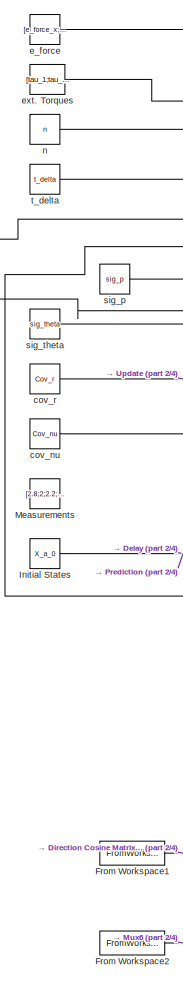
[diagram: root canvas - part 1/4, top left region]
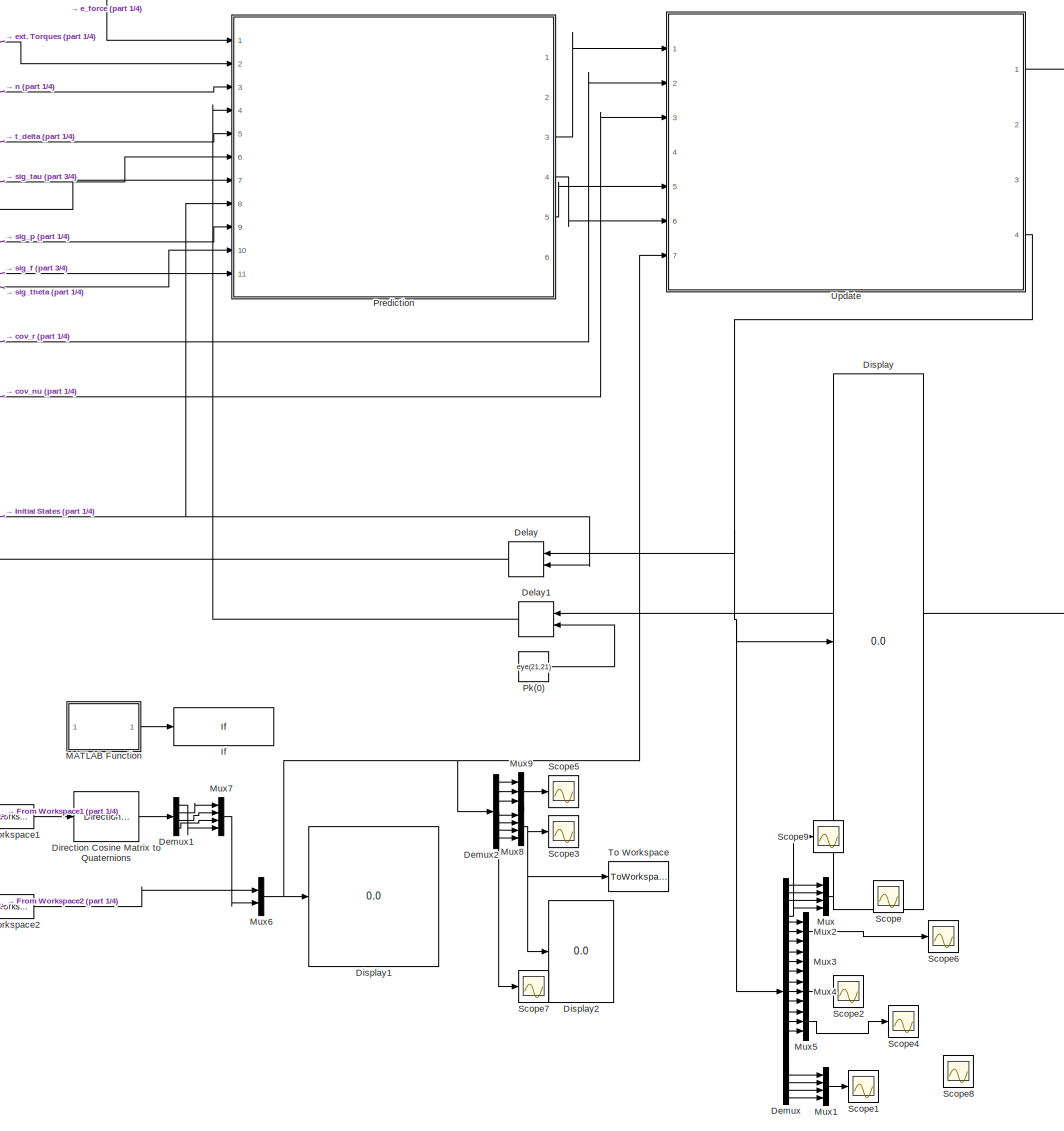
[diagram: root canvas - part 2/4, top left region]
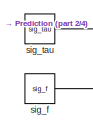
[diagram: root canvas - part 3/4, top left region]
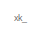
[diagram: root canvas - part 4/4, bottom right region]
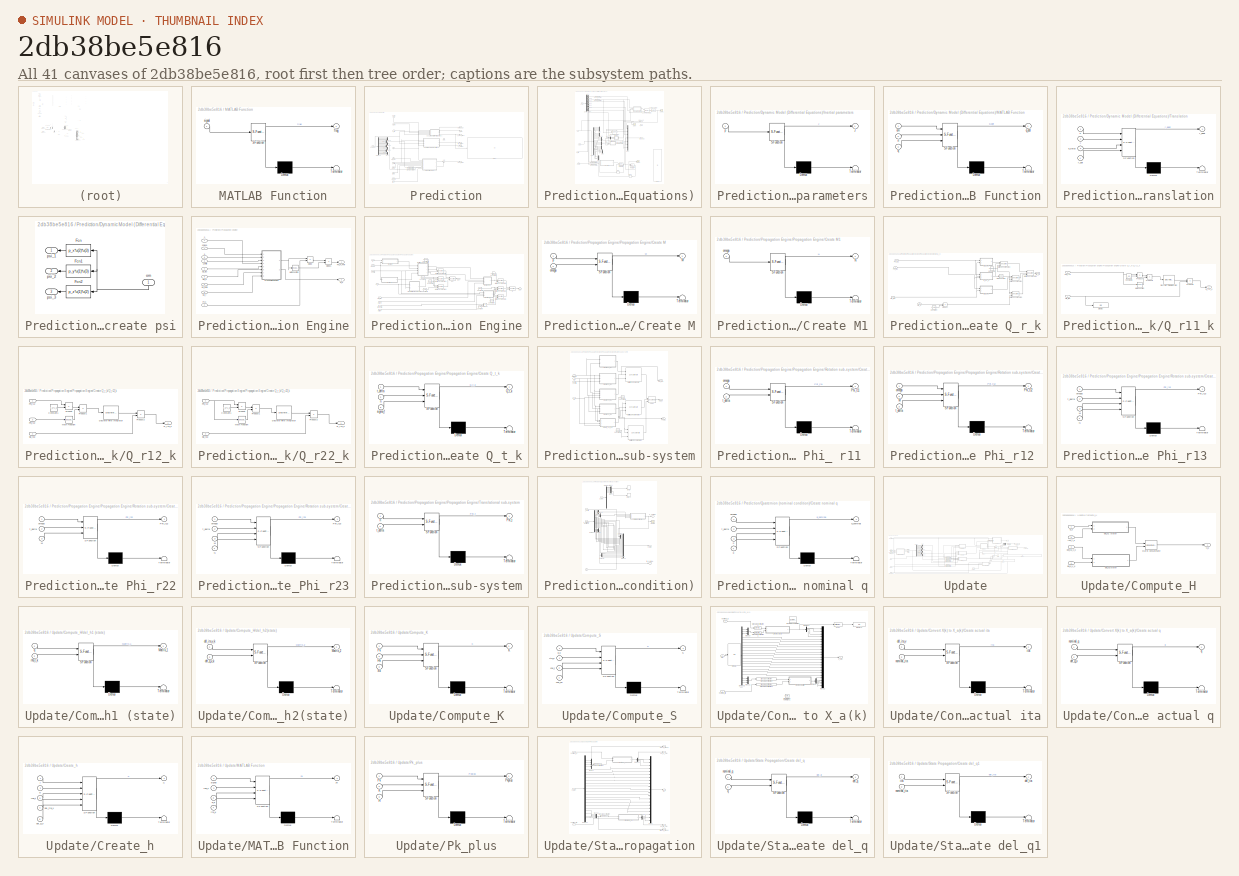
[diagram: thumbnail index - all 41 canvases of the model, root first then tree order]
MODEL slx_2db38be5e816
KIND model
WORKSPACE source: external: MATLAB File  (data not in archive)
BLOCK [Delay] Delay
  DelayLength = 1
  InitialCondition = 0
  InitialConditionSource = Input port
  InputPortMap = u0,p4
  Ports = [2, 1]
BLOCK [Delay] Delay1
  DelayLength = 1
  InitialCondition = 0
  InitialConditionSource = Input port
  InputPortMap = u0,p4
  Ports = [2, 1]
BLOCK [Demux] Demux
  DisplayOption = bar
  Outputs = 23
  Ports = [1, 23]
BLOCK [Demux] Demux1
  DisplayOption = bar
  Ports = [1, 4]
BLOCK [Demux] Demux2
  DisplayOption = bar
  Outputs = 7
  Ports = [1, 7]
BLOCK [Reference] Direction Cosine Matrix to Quaternions  REF=aerolibtransform2/Direction Cosine Matrix 
to Quaternions
  Ports = [1, 1]
  SourceBlock = aerolibtransform2/Direction Cosine Matrix \nto Quaternions
  SourceType = DCM2Quaternion
BLOCK [Display] Display
  Decimation = 1
  Ports = [1]
BLOCK [Display] Display1
  Decimation = 1
  Ports = [1]
BLOCK [Display] Display2
  Decimation = 1
  Ports = [1]
BLOCK [FromWorkspace] From Workspace1
  Interpolate = off
  OutputAfterFinalValue = Setting to zero
  VariableName = ts_coll.Signal_Transf_2
  ZeroCross = on
BLOCK [FromWorkspace] From Workspace2
  Interpolate = off
  OutputAfterFinalValue = Setting to zero
  VariableName = ts_coll.Signal_vector_2
  ZeroCross = on
BLOCK [If] If
  IfExpression = u1 ==1
  Ports = [1, 1]
  ShowElse = off
BLOCK [Constant] Initial States 
  Value = X_a_0
BLOCK [SubSystem] MATLAB Function
  ErrorFcn = Stateflow.Translate.translate
  PermitHierarchicalResolution = ExplicitOnly
  Ports = [1, 1]
  RequestExecContextInheritance = off
  SFBlockType = MATLAB Function
  TreatAsAtomicUnit = on
BLOCK [Demux] MATLAB Function/ Demux 
  Outputs = 1
  Ports = [1, 1]
BLOCK [S-Function] MATLAB Function/ SFunction 
  EnableBusSupport = on
  FunctionName = sf_sfun
  PortCounts = [1 2]
  Ports = [1, 2]
  Tag = Stateflow S-Function Model_01 24
BLOCK [Terminator] MATLAB Function/ Terminator 
BLOCK [Outport] MATLAB Function/flag
  IconDisplay = Port number
BLOCK [Inport] MATLAB Function/signal
  IconDisplay = Port number
BLOCK [Constant] Measurements 
  Value = [2.8;2;2.2;0.01;0.003;0.003]
BLOCK [Mux] Mux
  DisplayOption = bar
  Ports = [4, 1]
BLOCK [Mux] Mux1
  DisplayOption = bar
  Ports = [4, 1]
BLOCK [Mux] Mux2
  DisplayOption = bar
  Inputs = 3
  Ports = [3, 1]
BLOCK [Mux] Mux3
  DisplayOption = bar
  Inputs = 3
  Ports = [3, 1]
BLOCK [Mux] Mux4
  DisplayOption = bar
  Inputs = 3
  Ports = [3, 1]
BLOCK [Mux] Mux5
  DisplayOption = bar
  Inputs = 3
  Ports = [3, 1]
BLOCK [Mux] Mux6
  DisplayOption = bar
  Inputs = 2
  Ports = [2, 1]
BLOCK [Mux] Mux7
  DisplayOption = bar
  Ports = [4, 1]
BLOCK [Mux] Mux8
  DisplayOption = bar
  Ports = [4, 1]
BLOCK [Mux] Mux9
  DisplayOption = bar
  Inputs = 3
  Ports = [3, 1]
BLOCK [Constant] Pk(0)
  Value = eye(21,21)
BLOCK [SubSystem] Prediction
  Ports = [11, 6]
  RequestExecContextInheritance = off
BLOCK [Demux] Prediction/Demux10
  DisplayOption = bar
  Outputs = 23
  Ports = [1, 23]
BLOCK [Display] Prediction/Display
  Decimation = 1
  Ports = [1]
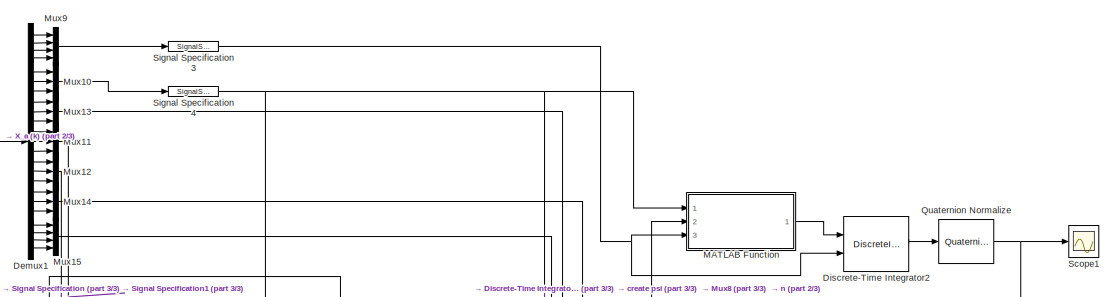
[diagram: Prediction/Dynamic Model (Differential Equations) - part 1/3, full width, top band]
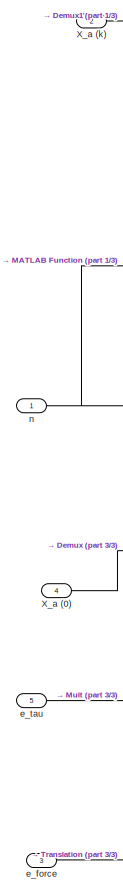
[diagram: Prediction/Dynamic Model (Differential Equations) - part 2/3, middle left region]
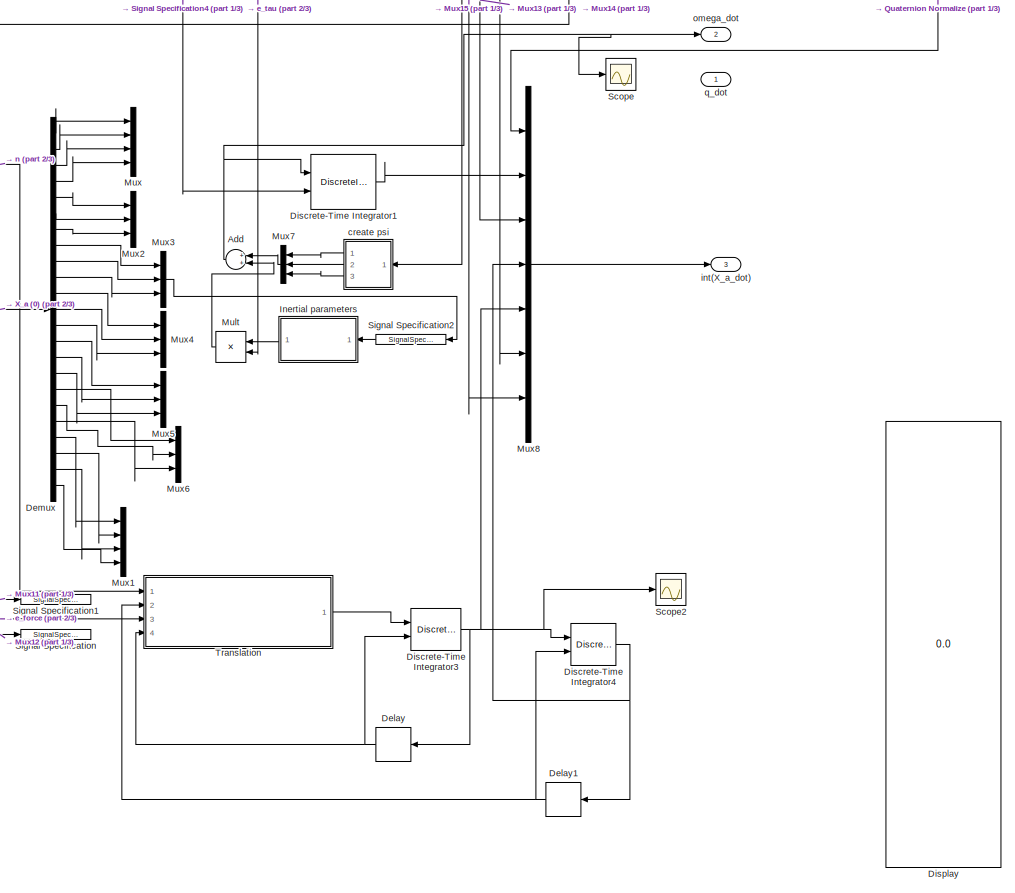
[diagram: Prediction/Dynamic Model (Differential Equations) - part 3/3, full width, middle band]
BLOCK [SubSystem] Prediction/Dynamic Model (Differential Equations)
  Ports = [5, 3]
  RequestExecContextInheritance = off
BLOCK [Sum] Prediction/Dynamic Model (Differential Equations)/Add
  InputSameDT = off
  OutDataTypeStr = Inherit: Inherit via internal rule
  Ports = [2, 1]
  SaturateOnIntegerOverflow = off
BLOCK [Delay] Prediction/Dynamic Model (Differential Equations)/Delay
  DelayLength = 1
  InitialCondition = [r_dot_x_0;r_dot_y_0;r_dot_z_0]
  InputPortMap = u0
  Ports = [1, 1]
BLOCK [Delay] Prediction/Dynamic Model (Differential Equations)/Delay1
  DelayLength = 1
  InitialCondition = [r_x_0;r_y_0;r_z_0]
  InputPortMap = u0
  Ports = [1, 1]
BLOCK [Demux] Prediction/Dynamic Model (Differential Equations)/Demux
  DisplayOption = bar
  Outputs = 23
  Ports = [1, 23]
BLOCK [Demux] Prediction/Dynamic Model (Differential Equations)/Demux1
  DisplayOption = bar
  Outputs = 23
  Ports = [1, 23]
BLOCK [DiscreteIntegrator] Prediction/Dynamic Model (Differential Equations)/Discrete-Time Integrator1
  ICPrevOutput = DiscIntNeverNeededParam
  ICPrevScaledInput = DiscIntNeverNeededParam
  InitialConditionSource = external
  Ports = [2, 1]
  SampleTime = -1
BLOCK [DiscreteIntegrator] Prediction/Dynamic Model (Differential Equations)/Discrete-Time Integrator2
  ICPrevOutput = DiscIntNeverNeededParam
  ICPrevScaledInput = DiscIntNeverNeededParam
  InitialConditionSource = external
  Ports = [2, 1]
  SampleTime = -1
BLOCK [DiscreteIntegrator] Prediction/Dynamic Model (Differential Equations)/Discrete-Time Integrator3
  ICPrevOutput = DiscIntNeverNeededParam
  ICPrevScaledInput = DiscIntNeverNeededParam
  InitialConditionSource = external
  Ports = [2, 1]
  SampleTime = -1
BLOCK [DiscreteIntegrator] Prediction/Dynamic Model (Differential Equations)/Discrete-Time Integrator4
  ICPrevOutput = DiscIntNeverNeededParam
  ICPrevScaledInput = DiscIntNeverNeededParam
  InitialConditionSource = external
  Ports = [2, 1]
  SampleTime = -1
BLOCK [Display] Prediction/Dynamic Model (Differential Equations)/Display
  Decimation = 1
  Ports = [1]
BLOCK [SubSystem] Prediction/Dynamic Model (Differential Equations)/Inertial parameters
  ErrorFcn = Stateflow.Translate.translate
  PermitHierarchicalResolution = ExplicitOnly
  Ports = [1, 1]
  RequestExecContextInheritance = off
  SFBlockType = MATLAB Function
  TreatAsAtomicUnit = on
BLOCK [Demux] Prediction/Dynamic Model (Differential Equations)/Inertial parameters/ Demux 
  Outputs = 1
  Ports = [1, 1]
BLOCK [S-Function] Prediction/Dynamic Model (Differential Equations)/Inertial parameters/ SFunction 
  EnableBusSupport = on
  FunctionName = sf_sfun
  PortCounts = [1 2]
  Ports = [1, 2]
  Tag = Stateflow S-Function Model_01 10
BLOCK [Terminator] Prediction/Dynamic Model (Differential Equations)/Inertial parameters/ Terminator 
BLOCK [Outport] Prediction/Dynamic Model (Differential Equations)/Inertial parameters/J
  IconDisplay = Port number
BLOCK [Inport] Prediction/Dynamic Model (Differential Equations)/Inertial parameters/p
  IconDisplay = Port number
BLOCK [SubSystem] Prediction/Dynamic Model (Differential Equations)/MATLAB Function
  ErrorFcn = Stateflow.Translate.translate
  PermitHierarchicalResolution = ExplicitOnly
  Ports = [3, 1]
  RequestExecContextInheritance = off
  SFBlockType = MATLAB Function
  TreatAsAtomicUnit = on
BLOCK [Demux] Prediction/Dynamic Model (Differential Equations)/MATLAB Function/ Demux 
  Outputs = 1
  Ports = [1, 1]
BLOCK [S-Function] Prediction/Dynamic Model (Differential Equations)/MATLAB Function/ SFunction 
  EnableBusSupport = on
  FunctionName = sf_sfun
  PortCounts = [3 2]
  Ports = [3, 2]
  Tag = Stateflow S-Function Model_01 8
BLOCK [Terminator] Prediction/Dynamic Model (Differential Equations)/MATLAB Function/ Terminator 
BLOCK [Inport] Prediction/Dynamic Model (Differential Equations)/MATLAB Function/n
  IconDisplay = Port number
  Port = 2
BLOCK [Inport] Prediction/Dynamic Model (Differential Equations)/MATLAB Function/om
  IconDisplay = Port number
BLOCK [Inport] Prediction/Dynamic Model (Differential Equations)/MATLAB Function/q
  IconDisplay = Port number
  Port = 3
BLOCK [Outport] Prediction/Dynamic Model (Differential Equations)/MATLAB Function/q_dot
  IconDisplay = Port number
BLOCK [Product] Prediction/Dynamic Model (Differential Equations)/Mult
  InputSameDT = off
  Inputs = **
  Multiplication = Matrix(*)
  OutDataTypeStr = Inherit: Inherit via internal rule
  Ports = [2, 1]
  RndMeth = Floor
  SaturateOnIntegerOverflow = off
BLOCK [Mux] Prediction/Dynamic Model (Differential Equations)/Mux
  DisplayOption = bar
  Ports = [4, 1]
BLOCK [Mux] Prediction/Dynamic Model (Differential Equations)/Mux1
  DisplayOption = bar
  Ports = [4, 1]
BLOCK [Mux] Prediction/Dynamic Model (Differential Equations)/Mux10
  DisplayOption = bar
  Inputs = 3
  Ports = [3, 1]
BLOCK [Mux] Prediction/Dynamic Model (Differential Equations)/Mux11
  DisplayOption = bar
  Inputs = 3
  Ports = [3, 1]
BLOCK [Mux] Prediction/Dynamic Model (Differential Equations)/Mux12
  DisplayOption = bar
  Inputs = 3
  Ports = [3, 1]
BLOCK [Mux] Prediction/Dynamic Model (Differential Equations)/Mux13
  DisplayOption = bar
  Inputs = 3
  Ports = [3, 1]
BLOCK [Mux] Prediction/Dynamic Model (Differential Equations)/Mux14
  DisplayOption = bar
  Inputs = 3
  Ports = [3, 1]
BLOCK [Mux] Prediction/Dynamic Model (Differential Equations)/Mux15
  DisplayOption = bar
  Ports = [4, 1]
BLOCK [Mux] Prediction/Dynamic Model (Differential Equations)/Mux2
  DisplayOption = bar
  Inputs = 3
  Ports = [3, 1]
BLOCK [Mux] Prediction/Dynamic Model (Differential Equations)/Mux3
  DisplayOption = bar
  Inputs = 3
  Ports = [3, 1]
BLOCK [Mux] Prediction/Dynamic Model (Differential Equations)/Mux4
  DisplayOption = bar
  Inputs = 3
  Ports = [3, 1]
BLOCK [Mux] Prediction/Dynamic Model (Differential Equations)/Mux5
  DisplayOption = bar
  Inputs = 3
  Ports = [3, 1]
BLOCK [Mux] Prediction/Dynamic Model (Differential Equations)/Mux6
  DisplayOption = bar
  Inputs = 3
  Ports = [3, 1]
BLOCK [Mux] Prediction/Dynamic Model (Differential Equations)/Mux7
  DisplayOption = bar
  Inputs = 3
  Ports = [3, 1]
BLOCK [Mux] Prediction/Dynamic Model (Differential Equations)/Mux8
  DisplayOption = bar
  Inputs = 7
  Ports = [7, 1]
BLOCK [Mux] Prediction/Dynamic Model (Differential Equations)/Mux9
  DisplayOption = bar
  Ports = [4, 1]
BLOCK [Reference] Prediction/Dynamic Model (Differential Equations)/Quaternion Normalize  REF=aerolibutil/Quaternion
Normalize
  Ports = [1, 1]
  SourceBlock = aerolibutil/Quaternion\nNormalize
  SourceType = Quaternion Normalize
BLOCK [Scope] Prediction/Dynamic Model (Differential Equations)/Scope
  DataFormat = StructureWithTime
  Floating = off
  NumInputPorts = 1
  Ports = [1]
  SampleTime = 0
  SaveName = ScopeData4
  ShowLegends = off
  TimeRange = 100
  YMax = 2.5
  YMin = -2.5
BLOCK [Scope] Prediction/Dynamic Model (Differential Equations)/Scope1
  DataFormat = StructureWithTime
  Floating = off
  LegendLocations = 0.8545      0.8461     0.12335    0.099165
  NumInputPorts = 1
  Ports = [1]
  SampleTime = 0
  SaveName = ScopeData6
  ShowLegends = on
  TimeRange = 100
  YMax = 2.5
  YMin = -2.5
BLOCK [Scope] Prediction/Dynamic Model (Differential Equations)/Scope2
  DataFormat = StructureWithTime
  Floating = off
  NumInputPorts = 1
  Ports = [1]
  SampleTime = 0
  SaveName = ScopeData8
  ShowLegends = off
  TimeRange = 100
  YMax = 2.5
  YMin = -2.5
BLOCK [SignalSpecification] Prediction/Dynamic Model (Differential Equations)/Signal Specification
  Dimensions = 3
  OutDataTypeStr = double
BLOCK [SignalSpecification] Prediction/Dynamic Model (Differential Equations)/Signal Specification1
  Dimensions = 3
  OutDataTypeStr = double
BLOCK [SignalSpecification] Prediction/Dynamic Model (Differential Equations)/Signal Specification2
  Dimensions = 3
  OutDataTypeStr = double
BLOCK [SignalSpecification] Prediction/Dynamic Model (Differential Equations)/Signal Specification3
  Dimensions = 4
  OutDataTypeStr = double
BLOCK [SignalSpecification] Prediction/Dynamic Model (Differential Equations)/Signal Specification4
  Dimensions = 3
  OutDataTypeStr = double
BLOCK [SubSystem] Prediction/Dynamic Model (Differential Equations)/Translation
  ErrorFcn = Stateflow.Translate.translate
  PermitHierarchicalResolution = ExplicitOnly
  Ports = [4, 1]
  RequestExecContextInheritance = off
  SFBlockType = MATLAB Function
  TreatAsAtomicUnit = on
BLOCK [Demux] Prediction/Dynamic Model (Differential Equations)/Translation/ Demux 
  Outputs = 1
  Ports = [1, 1]
BLOCK [S-Function] Prediction/Dynamic Model (Differential Equations)/Translation/ SFunction 
  EnableBusSupport = on
  FunctionName = sf_sfun
  PortCounts = [4 2]
  Ports = [4, 2]
  Tag = Stateflow S-Function Model_01 9
BLOCK [Terminator] Prediction/Dynamic Model (Differential Equations)/Translation/ Terminator 
BLOCK [Inport] Prediction/Dynamic Model (Differential Equations)/Translation/e_force
  IconDisplay = Port number
  Port = 3
BLOCK [Inport] Prediction/Dynamic Model (Differential Equations)/Translation/n
  IconDisplay = Port number
BLOCK [Inport] Prediction/Dynamic Model (Differential Equations)/Translation/r
  IconDisplay = Port number
  Port = 2
BLOCK [Outport] Prediction/Dynamic Model (Differential Equations)/Translation/r_ddot
  IconDisplay = Port number
BLOCK [Inport] Prediction/Dynamic Model (Differential Equations)/Translation/r_dot
  IconDisplay = Port number
  Port = 4
BLOCK [Inport] Prediction/Dynamic Model (Differential Equations)/X_a (0)
  IconDisplay = Port number
  Port = 4
BLOCK [Inport] Prediction/Dynamic Model (Differential Equations)/X_a (k)
  IconDisplay = Port number
  Port = 2
BLOCK [SubSystem] Prediction/Dynamic Model (Differential Equations)/create psi
  Ports = [1, 3]
  RequestExecContextInheritance = off
BLOCK [Fcn] Prediction/Dynamic Model (Differential Equations)/create psi/Fcn
  Expr = p_x*u(2)*u(3)
BLOCK [Fcn] Prediction/Dynamic Model (Differential Equations)/create psi/Fcn1
  Expr = p_y*u(1)*u(3)
BLOCK [Fcn] Prediction/Dynamic Model (Differential Equations)/create psi/Fcn2
  Expr = p_z*u(1)*u(2)
BLOCK [Inport] Prediction/Dynamic Model (Differential Equations)/create psi/om
  IconDisplay = Port number
BLOCK [Outport] Prediction/Dynamic Model (Differential Equations)/create psi/psi_1
  IconDisplay = Port number
BLOCK [Outport] Prediction/Dynamic Model (Differential Equations)/create psi/psi_2
  IconDisplay = Port number
  Port = 2
BLOCK [Outport] Prediction/Dynamic Model (Differential Equations)/create psi/psi_3 
  IconDisplay = Port number
  Port = 3
BLOCK [Inport] Prediction/Dynamic Model (Differential Equations)/e_force
  IconDisplay = Port number
  Port = 3
BLOCK [Inport] Prediction/Dynamic Model (Differential Equations)/e_tau
  IconDisplay = Port number
  Port = 5
BLOCK [Outport] Prediction/Dynamic Model (Differential Equations)/int(X_a_dot)
  IconDisplay = Port number
  Port = 3
BLOCK [Inport] Prediction/Dynamic Model (Differential Equations)/n
  IconDisplay = Port number
BLOCK [Outport] Prediction/Dynamic Model (Differential Equations)/omega_dot
  IconDisplay = Port number
  Port = 2
BLOCK [Outport] Prediction/Dynamic Model (Differential Equations)/q_dot
  IconDisplay = Port number
BLOCK [Mux] Prediction/Mux19
  DisplayOption = bar
  Ports = [4, 1]
BLOCK [Mux] Prediction/Mux20
  DisplayOption = bar
  Ports = [4, 1]
BLOCK [Mux] Prediction/Mux21
  DisplayOption = bar
  Inputs = 3
  Ports = [3, 1]
BLOCK [Mux] Prediction/Mux22
  DisplayOption = bar
  Inputs = 3
  Ports = [3, 1]
BLOCK [Mux] Prediction/Mux23
  DisplayOption = bar
  Inputs = 3
  Ports = [3, 1]
BLOCK [Mux] Prediction/Mux24
  DisplayOption = bar
  Inputs = 3
  Ports = [3, 1]
BLOCK [Mux] Prediction/Mux25
  DisplayOption = bar
  Inputs = 3
  Ports = [3, 1]
BLOCK [Inport] Prediction/P(k)_Plus
  IconDisplay = Port number
  Port = 4
BLOCK [Outport] Prediction/P(k+1)_Minus
  IconDisplay = Port number
  Port = 3
BLOCK [SubSystem] Prediction/Propagation Engine
  Ports = [9, 2]
  RequestExecContextInheritance = off
BLOCK [Product] Prediction/Propagation Engine/Divide
  InputSameDT = off
  Inputs = **
  Multiplication = Matrix(*)
  OutDataTypeStr = Inherit: Inherit via internal rule
  Ports = [2, 1]
  RndMeth = Floor
  SaturateOnIntegerOverflow = off
BLOCK [Product] Prediction/Propagation Engine/Divide1
  InputSameDT = off
  Inputs = **
  Multiplication = Matrix(*)
  OutDataTypeStr = Inherit: Inherit via internal rule
  Ports = [2, 1]
  RndMeth = Floor
  SaturateOnIntegerOverflow = off
BLOCK [Math] Prediction/Propagation Engine/Math Function
  Operator = transpose
  Ports = [1, 1]
BLOCK [Inport] Prediction/Propagation Engine/P(k)
  IconDisplay = Port number
  Port = 2
BLOCK [Outport] Prediction/Propagation Engine/Phi_P_PhiT
  IconDisplay = Port number
BLOCK [SubSystem] Prediction/Propagation Engine/Propagation Engine
  Ports = [8, 2]
  RequestExecContextInheritance = off
BLOCK [Constant] Prediction/Propagation Engine/Propagation Engine/Constant
  Value = eye(6,6)
BLOCK [Constant] Prediction/Propagation Engine/Propagation Engine/Constant1
  Value = zeros(9,12)
  VectorParams1D = off
BLOCK [Constant] Prediction/Propagation Engine/Propagation Engine/Constant2
  Value = zeros(6,9)
  VectorParams1D = off
BLOCK [Constant] Prediction/Propagation Engine/Propagation Engine/Constant3
  Value = zeros(6,6)
  VectorParams1D = off
BLOCK [Constant] Prediction/Propagation Engine/Propagation Engine/Constant5
  Value = eye(6,6)
  VectorParams1D = off
BLOCK [Constant] Prediction/Propagation Engine/Propagation Engine/Constant6
  Value = zeros(9,12)
  VectorParams1D = off
BLOCK [Constant] Prediction/Propagation Engine/Propagation Engine/Constant7
  Value = zeros(6,9)
  VectorParams1D = off
BLOCK [Constant] Prediction/Propagation Engine/Propagation Engine/Constant8
  Value = zeros(6,6)
  VectorParams1D = off
BLOCK [SubSystem] Prediction/Propagation Engine/Propagation Engine/Create M
  ErrorFcn = Stateflow.Translate.translate
  PermitHierarchicalResolution = ExplicitOnly
  Ports = [2, 1]
  RequestExecContextInheritance = off
  SFBlockType = MATLAB Function
  TreatAsAtomicUnit = on
BLOCK [Demux] Prediction/Propagation Engine/Propagation Engine/Create M/ Demux 
  Outputs = 1
  Ports = [1, 1]
BLOCK [S-Function] Prediction/Propagation Engine/Propagation Engine/Create M/ SFunction 
  EnableBusSupport = on
  FunctionName = sf_sfun
  PortCounts = [2 2]
  Ports = [2, 2]
  Tag = Stateflow S-Function Model_01 22
BLOCK [Terminator] Prediction/Propagation Engine/Propagation Engine/Create M/ Terminator 
BLOCK [Outport] Prediction/Propagation Engine/Propagation Engine/Create M/M
  IconDisplay = Port number
BLOCK [Inport] Prediction/Propagation Engine/Propagation Engine/Create M/omega
  IconDisplay = Port number
  Port = 2
BLOCK [Inport] Prediction/Propagation Engine/Propagation Engine/Create M/p
  IconDisplay = Port number
BLOCK [SubSystem] Prediction/Propagation Engine/Propagation Engine/Create M1
  ErrorFcn = Stateflow.Translate.translate
  PermitHierarchicalResolution = ExplicitOnly
  Ports = [1, 1]
  RequestExecContextInheritance = off
  SFBlockType = MATLAB Function
  TreatAsAtomicUnit = on
BLOCK [Demux] Prediction/Propagation Engine/Propagation Engine/Create M1/ Demux 
  Outputs = 1
  Ports = [1, 1]
BLOCK [S-Function] Prediction/Propagation Engine/Propagation Engine/Create M1/ SFunction 
  EnableBusSupport = on
  FunctionName = sf_sfun
  PortCounts = [1 2]
  Ports = [1, 2]
  Tag = Stateflow S-Function Model_01 23
BLOCK [Terminator] Prediction/Propagation Engine/Propagation Engine/Create M1/ Terminator 
BLOCK [Outport] Prediction/Propagation Engine/Propagation Engine/Create M1/N
  IconDisplay = Port number
BLOCK [Inport] Prediction/Propagation Engine/Propagation Engine/Create M1/omega
  IconDisplay = Port number
BLOCK [SubSystem] Prediction/Propagation Engine/Propagation Engine/Create Q_r_k
  Ports = [4, 1]
  RequestExecContextInheritance = off
BLOCK [Constant] Prediction/Propagation Engine/Propagation Engine/Create Q_r_k/Constant
  Value = eye(3,3)
BLOCK [Constant] Prediction/Propagation Engine/Propagation Engine/Create Q_r_k/Constant1
  Value = zeros(3,3)
  VectorParams1D = off
BLOCK [Math] Prediction/Propagation Engine/Propagation Engine/Create Q_r_k/Math Function
  Operator = transpose
  Ports = [1, 1]
BLOCK [Concatenate] Prediction/Propagation Engine/Propagation Engine/Create Q_r_k/Matrix Concatenate3
  ConcatenateDimension = 2
  Mode = Multidimensional array
  NumInputs = 3
  Ports = [3, 1]
BLOCK [Concatenate] Prediction/Propagation Engine/Propagation Engine/Create Q_r_k/Matrix Concatenate4
  ConcatenateDimension = 2
  Mode = Multidimensional array
  NumInputs = 3
  Ports = [3, 1]
BLOCK [Concatenate] Prediction/Propagation Engine/Propagation Engine/Create Q_r_k/Matrix Concatenate5
  ConcatenateDimension = 2
  Mode = Multidimensional array
  NumInputs = 3
  Ports = [3, 1]
BLOCK [Concatenate] Prediction/Propagation Engine/Propagation Engine/Create Q_r_k/Matrix Concatenate6
  Mode = Multidimensional array
  NumInputs = 3
  Ports = [3, 1]
BLOCK [Inport] Prediction/Propagation Engine/Propagation Engine/Create Q_r_k/Ph_r12 
  IconDisplay = Port number
BLOCK [Inport] Prediction/Propagation Engine/Propagation Engine/Create Q_r_k/Phi_r22
  IconDisplay = Port number
  Port = 2
BLOCK [Product] Prediction/Propagation Engine/Propagation Engine/Create Q_r_k/Product
  InputSameDT = off
  OutDataTypeStr = Inherit: Inherit via internal rule
  Ports = [2, 1]
  RndMeth = Floor
  SaturateOnIntegerOverflow = off
BLOCK [SubSystem] Prediction/Propagation Engine/Propagation Engine/Create Q_r_k/Q_r11_k
  Ports = [2, 1]
  RequestExecContextInheritance = off
BLOCK [Constant] Prediction/Propagation Engine/Propagation Engine/Create Q_r_k/Q_r11_k/Constant1
  Value = J_k*J_k
  VectorParams1D = off
BLOCK [DiscreteIntegrator] Prediction/Propagation Engine/Propagation Engine/Create Q_r_k/Q_r11_k/Discrete-Time Integrator
  ICPrevOutput = DiscIntNeverNeededParam
  ICPrevScaledInput = DiscIntNeverNeededParam
  Ports = [1, 1]
  SampleTime = -1
BLOCK [Display] Prediction/Propagation Engine/Propagation Engine/Create Q_r_k/Q_r11_k/Display
  Decimation = 1
  Ports = [1]
BLOCK [Math] Prediction/Propagation Engine/Propagation Engine/Create Q_r_k/Q_r11_k/Math Function
  Operator = transpose
  Ports = [1, 1]
BLOCK [Inport] Prediction/Propagation Engine/Propagation Engine/Create Q_r_k/Q_r11_k/Phi_r12
  IconDisplay = Port number
BLOCK [Product] Prediction/Propagation Engine/Propagation Engine/Create Q_r_k/Q_r11_k/Product
  InputSameDT = off
  Multiplication = Matrix(*)
  OutDataTypeStr = Inherit: Inherit via internal rule
  Ports = [2, 1]
  RndMeth = Floor
  SaturateOnIntegerOverflow = off
BLOCK [Product] Prediction/Propagation Engine/Propagation Engine/Create Q_r_k/Q_r11_k/Product1
  InputSameDT = off
  Multiplication = Matrix(*)
  OutDataTypeStr = Inherit: Inherit via internal rule
  Ports = [2, 1]
  RndMeth = Floor
  SaturateOnIntegerOverflow = off
BLOCK [Product] Prediction/Propagation Engine/Propagation Engine/Create Q_r_k/Q_r11_k/Product2
  InputSameDT = off
  OutDataTypeStr = Inherit: Inherit via internal rule
  Ports = [2, 1]
  RndMeth = Floor
  SaturateOnIntegerOverflow = off
BLOCK [Outport] Prediction/Propagation Engine/Propagation Engine/Create Q_r_k/Q_r11_k/Q_r11_k
  IconDisplay = Port number
BLOCK [Inport] Prediction/Propagation Engine/Propagation Engine/Create Q_r_k/Q_r11_k/sig_tau 
  IconDisplay = Port number
  Port = 2
BLOCK [SubSystem] Prediction/Propagation Engine/Propagation Engine/Create Q_r_k/Q_r12_k
  Ports = [3, 1]
  RequestExecContextInheritance = off
BLOCK [Constant] Prediction/Propagation Engine/Propagation Engine/Create Q_r_k/Q_r12_k/Constant1
  Value = J_k*J_k
  VectorParams1D = off
BLOCK [DiscreteIntegrator] Prediction/Propagation Engine/Propagation Engine/Create Q_r_k/Q_r12_k/Discrete-Time Integrator
  ICPrevOutput = DiscIntNeverNeededParam
  ICPrevScaledInput = DiscIntNeverNeededParam
  Ports = [1, 1]
  SampleTime = -1
BLOCK [Math] Prediction/Propagation Engine/Propagation Engine/Create Q_r_k/Q_r12_k/Math Function
  Operator = transpose
  Ports = [1, 1]
BLOCK [Inport] Prediction/Propagation Engine/Propagation Engine/Create Q_r_k/Q_r12_k/Phi_r12
  IconDisplay = Port number
BLOCK [Inport] Prediction/Propagation Engine/Propagation Engine/Create Q_r_k/Q_r12_k/Phi_r22
  IconDisplay = Port number
  Port = 3
BLOCK [Product] Prediction/Propagation Engine/Propagation Engine/Create Q_r_k/Q_r12_k/Product
  InputSameDT = off
  Multiplication = Matrix(*)
  OutDataTypeStr = Inherit: Inherit via internal rule
  Ports = [2, 1]
  RndMeth = Floor
  SaturateOnIntegerOverflow = off
BLOCK [Product] Prediction/Propagation Engine/Propagation Engine/Create Q_r_k/Q_r12_k/Product1
  InputSameDT = off
  Multiplication = Matrix(*)
  OutDataTypeStr = Inherit: Inherit via internal rule
  Ports = [2, 1]
  RndMeth = Floor
  SaturateOnIntegerOverflow = off
BLOCK [Product] Prediction/Propagation Engine/Propagation Engine/Create Q_r_k/Q_r12_k/Product2
  InputSameDT = off
  OutDataTypeStr = Inherit: Inherit via internal rule
  Ports = [2, 1]
  RndMeth = Floor
  SaturateOnIntegerOverflow = off
BLOCK [Outport] Prediction/Propagation Engine/Propagation Engine/Create Q_r_k/Q_r12_k/Q_r12_k
  IconDisplay = Port number
BLOCK [Inport] Prediction/Propagation Engine/Propagation Engine/Create Q_r_k/Q_r12_k/sig_tau 
  IconDisplay = Port number
  Port = 2
BLOCK [SubSystem] Prediction/Propagation Engine/Propagation Engine/Create Q_r_k/Q_r22_k
  Ports = [2, 1]
  RequestExecContextInheritance = off
BLOCK [Constant] Prediction/Propagation Engine/Propagation Engine/Create Q_r_k/Q_r22_k/Constant1
  Value = J_k*J_k
  VectorParams1D = off
BLOCK [DiscreteIntegrator] Prediction/Propagation Engine/Propagation Engine/Create Q_r_k/Q_r22_k/Discrete-Time Integrator
  ICPrevOutput = DiscIntNeverNeededParam
  ICPrevScaledInput = DiscIntNeverNeededParam
  Ports = [1, 1]
  SampleTime = -1
BLOCK [Math] Prediction/Propagation Engine/Propagation Engine/Create Q_r_k/Q_r22_k/Math Function
  Operator = transpose
  Ports = [1, 1]
BLOCK [Inport] Prediction/Propagation Engine/Propagation Engine/Create Q_r_k/Q_r22_k/Phi_r22
  IconDisplay = Port number
BLOCK [Product] Prediction/Propagation Engine/Propagation Engine/Create Q_r_k/Q_r22_k/Product
  InputSameDT = off
  Multiplication = Matrix(*)
  OutDataTypeStr = Inherit: Inherit via internal rule
  Ports = [2, 1]
  RndMeth = Floor
  SaturateOnIntegerOverflow = off
BLOCK [Product] Prediction/Propagation Engine/Propagation Engine/Create Q_r_k/Q_r22_k/Product1
  InputSameDT = off
  Multiplication = Matrix(*)
  OutDataTypeStr = Inherit: Inherit via internal rule
  Ports = [2, 1]
  RndMeth = Floor
  SaturateOnIntegerOverflow = off
BLOCK [Product] Prediction/Propagation Engine/Propagation Engine/Create Q_r_k/Q_r22_k/Product2
  InputSameDT = off
  OutDataTypeStr = Inherit: Inherit via internal rule
  Ports = [2, 1]
  RndMeth = Floor
  SaturateOnIntegerOverflow = off
BLOCK [Outport] Prediction/Propagation Engine/Propagation Engine/Create Q_r_k/Q_r22_k/Q_r12_k
  IconDisplay = Port number
BLOCK [Inport] Prediction/Propagation Engine/Propagation Engine/Create Q_r_k/Q_r22_k/sig_tau 
  IconDisplay = Port number
  Port = 2
BLOCK [Outport] Prediction/Propagation Engine/Propagation Engine/Create Q_r_k/Q_r_k
  IconDisplay = Port number
BLOCK [Inport] Prediction/Propagation Engine/Propagation Engine/Create Q_r_k/sig_p
  IconDisplay = Port number
  Port = 4
BLOCK [Inport] Prediction/Propagation Engine/Propagation Engine/Create Q_r_k/sig_tau
  IconDisplay = Port number
  Port = 3
BLOCK [SubSystem] Prediction/Propagation Engine/Propagation Engine/Create Q_t_k
  ErrorFcn = Stateflow.Translate.translate
  PermitHierarchicalResolution = ExplicitOnly
  Ports = [3, 1]
  RequestExecContextInheritance = off
  SFBlockType = MATLAB Function
  TreatAsAtomicUnit = on
BLOCK [Demux] Prediction/Propagation Engine/Propagation Engine/Create Q_t_k/ Demux 
  Outputs = 1
  Ports = [1, 1]
BLOCK [S-Function] Prediction/Propagation Engine/Propagation Engine/Create Q_t_k/ SFunction 
  EnableBusSupport = on
  FunctionName = sf_sfun
  PortCounts = [3 2]
  Ports = [3, 2]
  Tag = Stateflow S-Function Model_01 7
BLOCK [Terminator] Prediction/Propagation Engine/Propagation Engine/Create Q_t_k/ Terminator 
BLOCK [Outport] Prediction/Propagation Engine/Propagation Engine/Create Q_t_k/Q_t_k
  IconDisplay = Port number
BLOCK [Inport] Prediction/Propagation Engine/Propagation Engine/Create Q_t_k/n
  IconDisplay = Port number
  Port = 2
BLOCK [Inport] Prediction/Propagation Engine/Propagation Engine/Create Q_t_k/sigma_f
  IconDisplay = Port number
  Port = 3
BLOCK [Inport] Prediction/Propagation Engine/Propagation Engine/Create Q_t_k/t_delta
  IconDisplay = Port number
BLOCK [Concatenate] Prediction/Propagation Engine/Propagation Engine/Matrix Concatenate
  ConcatenateDimension = 2
  Mode = Multidimensional array
  Ports = [2, 1]
BLOCK [Concatenate] Prediction/Propagation Engine/Propagation Engine/Matrix Concatenate1
  ConcatenateDimension = 2
  Mode = Multidimensional array
  NumInputs = 3
  Ports = [3, 1]
BLOCK [Concatenate] Prediction/Propagation Engine/Propagation Engine/Matrix Concatenate2
  ConcatenateDimension = 2
  Mode = Multidimensional array
  NumInputs = 3
  Ports = [3, 1]
BLOCK [Concatenate] Prediction/Propagation Engine/Propagation Engine/Matrix Concatenate3
  ConcatenateDimension = 2
  Mode = Multidimensional array
  Ports = [2, 1]
BLOCK [Concatenate] Prediction/Propagation Engine/Propagation Engine/Matrix Concatenate4
  ConcatenateDimension = 2
  Mode = Multidimensional array
  NumInputs = 3
  Ports = [3, 1]
BLOCK [Concatenate] Prediction/Propagation Engine/Propagation Engine/Matrix Concatenate5
  ConcatenateDimension = 2
  Mode = Multidimensional array
  NumInputs = 3
  Ports = [3, 1]
BLOCK [Product] Prediction/Propagation Engine/Propagation Engine/Product
  InputSameDT = off
  OutDataTypeStr = Inherit: Inherit via internal rule
  Ports = [2, 1]
  RndMeth = Floor
  SaturateOnIntegerOverflow = off
BLOCK [Concatenate] Prediction/Propagation Engine/Propagation Engine/Q
  Mode = Multidimensional array
  NumInputs = 3
  Ports = [3, 1]
BLOCK [Outport] Prediction/Propagation Engine/Propagation Engine/Q_k 
  IconDisplay = Port number
  Port = 2
BLOCK [SubSystem] Prediction/Propagation Engine/Propagation Engine/Rotation sub-system
  Ports = [4, 3]
  RequestExecContextInheritance = off
BLOCK [Constant] Prediction/Propagation Engine/Propagation Engine/Rotation sub-system/Constant4
  Value = zeros(3,3)
BLOCK [Constant] Prediction/Propagation Engine/Propagation Engine/Rotation sub-system/Constant5
  Value = eye(3,3)
BLOCK [SubSystem] Prediction/Propagation Engine/Propagation Engine/Rotation sub-system/Create Phi_ r11 
  ErrorFcn = Stateflow.Translate.translate
  PermitHierarchicalResolution = ExplicitOnly
  Ports = [2, 1]
  RequestExecContextInheritance = off
  SFBlockType = MATLAB Function
  TreatAsAtomicUnit = on
BLOCK [Demux] Prediction/Propagation Engine/Propagation Engine/Rotation sub-system/Create Phi_ r11 / Demux 
  Outputs = 1
  Ports = [1, 1]
BLOCK [S-Function] Prediction/Propagation Engine/Propagation Engine/Rotation sub-system/Create Phi_ r11 / SFunction 
  EnableBusSupport = on
  FunctionName = sf_sfun
  PortCounts = [2 2]
  Ports = [2, 2]
  Tag = Stateflow S-Function Model_01 2
BLOCK [Terminator] Prediction/Propagation Engine/Propagation Engine/Rotation sub-system/Create Phi_ r11 / Terminator 
BLOCK [Outport] Prediction/Propagation Engine/Propagation Engine/Rotation sub-system/Create Phi_ r11 /Phi_r11
  IconDisplay = Port number
BLOCK [Inport] Prediction/Propagation Engine/Propagation Engine/Rotation sub-system/Create Phi_ r11 /omega
  IconDisplay = Port number
BLOCK [Inport] Prediction/Propagation Engine/Propagation Engine/Rotation sub-system/Create Phi_ r11 /t_delta
  IconDisplay = Port number
  Port = 2
BLOCK [SubSystem] Prediction/Propagation Engine/Propagation Engine/Rotation sub-system/Create Phi_r12 
  ErrorFcn = Stateflow.Translate.translate
  PermitHierarchicalResolution = ExplicitOnly
  Ports = [3, 1]
  RequestExecContextInheritance = off
  SFBlockType = MATLAB Function
  TreatAsAtomicUnit = on
BLOCK [Demux] Prediction/Propagation Engine/Propagation Engine/Rotation sub-system/Create Phi_r12 / Demux 
  Outputs = 1
  Ports = [1, 1]
BLOCK [S-Function] Prediction/Propagation Engine/Propagation Engine/Rotation sub-system/Create Phi_r12 / SFunction 
  EnableBusSupport = on
  FunctionName = sf_sfun
  PortCounts = [3 2]
  Ports = [3, 2]
  Tag = Stateflow S-Function Model_01 1
BLOCK [Terminator] Prediction/Propagation Engine/Propagation Engine/Rotation sub-system/Create Phi_r12 / Terminator 
BLOCK [Inport] Prediction/Propagation Engine/Propagation Engine/Rotation sub-system/Create Phi_r12 /M
  IconDisplay = Port number
  Port = 2
BLOCK [Outport] Prediction/Propagation Engine/Propagation Engine/Rotation sub-system/Create Phi_r12 /Phi_r12
  IconDisplay = Port number
BLOCK [Inport] Prediction/Propagation Engine/Propagation Engine/Rotation sub-system/Create Phi_r12 /omega
  IconDisplay = Port number
BLOCK [Inport] Prediction/Propagation Engine/Propagation Engine/Rotation sub-system/Create Phi_r12 /t_delta
  IconDisplay = Port number
  Port = 3
BLOCK [SubSystem] Prediction/Propagation Engine/Propagation Engine/Rotation sub-system/Create Phi_r13 
  ErrorFcn = Stateflow.Translate.translate
  PermitHierarchicalResolution = ExplicitOnly
  Ports = [4, 1]
  RequestExecContextInheritance = off
  SFBlockType = MATLAB Function
  TreatAsAtomicUnit = on
BLOCK [Demux] Prediction/Propagation Engine/Propagation Engine/Rotation sub-system/Create Phi_r13 / Demux 
  Outputs = 1
  Ports = [1, 1]
BLOCK [S-Function] Prediction/Propagation Engine/Propagation Engine/Rotation sub-system/Create Phi_r13 / SFunction 
  EnableBusSupport = on
  FunctionName = sf_sfun
  PortCounts = [4 2]
  Ports = [4, 2]
  Tag = Stateflow S-Function Model_01 3
BLOCK [Terminator] Prediction/Propagation Engine/Propagation Engine/Rotation sub-system/Create Phi_r13 / Terminator 
BLOCK [Inport] Prediction/Propagation Engine/Propagation Engine/Rotation sub-system/Create Phi_r13 /M
  IconDisplay = Port number
  Port = 3
BLOCK [Inport] Prediction/Propagation Engine/Propagation Engine/Rotation sub-system/Create Phi_r13 /N
  IconDisplay = Port number
  Port = 4
BLOCK [Outport] Prediction/Propagation Engine/Propagation Engine/Rotation sub-system/Create Phi_r13 /Phi_r13
  IconDisplay = Port number
BLOCK [Inport] Prediction/Propagation Engine/Propagation Engine/Rotation sub-system/Create Phi_r13 /omega
  IconDisplay = Port number
BLOCK [Inport] Prediction/Propagation Engine/Propagation Engine/Rotation sub-system/Create Phi_r13 /t_delta
  IconDisplay = Port number
  Port = 2
BLOCK [SubSystem] Prediction/Propagation Engine/Propagation Engine/Rotation sub-system/Create Phi_r22
  ErrorFcn = Stateflow.Translate.translate
  PermitHierarchicalResolution = ExplicitOnly
  Ports = [3, 1]
  RequestExecContextInheritance = off
  SFBlockType = MATLAB Function
  TreatAsAtomicUnit = on
BLOCK [Demux] Prediction/Propagation Engine/Propagation Engine/Rotation sub-system/Create Phi_r22/ Demux 
  Outputs = 1
  Ports = [1, 1]
BLOCK [S-Function] Prediction/Propagation Engine/Propagation Engine/Rotation sub-system/Create Phi_r22/ SFunction 
  EnableBusSupport = on
  FunctionName = sf_sfun
  PortCounts = [3 2]
  Ports = [3, 2]
  Tag = Stateflow S-Function Model_01 4
BLOCK [Terminator] Prediction/Propagation Engine/Propagation Engine/Rotation sub-system/Create Phi_r22/ Terminator 
BLOCK [Inport] Prediction/Propagation Engine/Propagation Engine/Rotation sub-system/Create Phi_r22/M
  IconDisplay = Port number
  Port = 3
BLOCK [Outport] Prediction/Propagation Engine/Propagation Engine/Rotation sub-system/Create Phi_r22/Phi_r22
  IconDisplay = Port number
BLOCK [Inport] Prediction/Propagation Engine/Propagation Engine/Rotation sub-system/Create Phi_r22/omega
  IconDisplay = Port number
BLOCK [Inport] Prediction/Propagation Engine/Propagation Engine/Rotation sub-system/Create Phi_r22/t_delta
  IconDisplay = Port number
  Port = 2
BLOCK [SubSystem] Prediction/Propagation Engine/Propagation Engine/Rotation sub-system/Create_Phi_r23
  ErrorFcn = Stateflow.Translate.translate
  PermitHierarchicalResolution = ExplicitOnly
  Ports = [4, 1]
  RequestExecContextInheritance = off
  SFBlockType = MATLAB Function
  TreatAsAtomicUnit = on
BLOCK [Demux] Prediction/Propagation Engine/Propagation Engine/Rotation sub-system/Create_Phi_r23/ Demux 
  Outputs = 1
  Ports = [1, 1]
BLOCK [S-Function] Prediction/Propagation Engine/Propagation Engine/Rotation sub-system/Create_Phi_r23/ SFunction 
  EnableBusSupport = on
  FunctionName = sf_sfun
  PortCounts = [4 2]
  Ports = [4, 2]
  Tag = Stateflow S-Function Model_01 5
BLOCK [Terminator] Prediction/Propagation Engine/Propagation Engine/Rotation sub-system/Create_Phi_r23/ Terminator 
BLOCK [Inport] Prediction/Propagation Engine/Propagation Engine/Rotation sub-system/Create_Phi_r23/M
  IconDisplay = Port number
  Port = 3
BLOCK [Inport] Prediction/Propagation Engine/Propagation Engine/Rotation sub-system/Create_Phi_r23/N
  IconDisplay = Port number
  Port = 4
BLOCK [Outport] Prediction/Propagation Engine/Propagation Engine/Rotation sub-system/Create_Phi_r23/Phi_r23
  IconDisplay = Port number
BLOCK [Inport] Prediction/Propagation Engine/Propagation Engine/Rotation sub-system/Create_Phi_r23/omega
  IconDisplay = Port number
BLOCK [Inport] Prediction/Propagation Engine/Propagation Engine/Rotation sub-system/Create_Phi_r23/t_delta
  IconDisplay = Port number
  Port = 2
BLOCK [Inport] Prediction/Propagation Engine/Propagation Engine/Rotation sub-system/M
  IconDisplay = Port number
  Port = 2
BLOCK [Concatenate] Prediction/Propagation Engine/Propagation Engine/Rotation sub-system/Matrix Concatenate
  ConcatenateDimension = 2
  Mode = Multidimensional array
  NumInputs = 3
  Ports = [3, 1]
BLOCK [Concatenate] Prediction/Propagation Engine/Propagation Engine/Rotation sub-system/Matrix Concatenate1
  ConcatenateDimension = 2
  Mode = Multidimensional array
  NumInputs = 3
  Ports = [3, 1]
BLOCK [Concatenate] Prediction/Propagation Engine/Propagation Engine/Rotation sub-system/Matrix Concatenate2
  ConcatenateDimension = 2
  Mode = Multidimensional array
  NumInputs = 3
  Ports = [3, 1]
BLOCK [Inport] Prediction/Propagation Engine/Propagation Engine/Rotation sub-system/N
  IconDisplay = Port number
  Port = 4
BLOCK [Outport] Prediction/Propagation Engine/Propagation Engine/Rotation sub-system/Phi_r 
  IconDisplay = Port number
BLOCK [Outport] Prediction/Propagation Engine/Propagation Engine/Rotation sub-system/Phi_r12
  IconDisplay = Port number
  Port = 2
BLOCK [Outport] Prediction/Propagation Engine/Propagation Engine/Rotation sub-system/Phi_r22
  IconDisplay = Port number
  Port = 3
BLOCK [Concatenate] Prediction/Propagation Engine/Propagation Engine/Rotation sub-system/conc
  Mode = Multidimensional array
  NumInputs = 3
  Ports = [3, 1]
BLOCK [Inport] Prediction/Propagation Engine/Propagation Engine/Rotation sub-system/omega
  IconDisplay = Port number
BLOCK [Inport] Prediction/Propagation Engine/Propagation Engine/Rotation sub-system/t_delta
  IconDisplay = Port number
  Port = 3
BLOCK [SubSystem] Prediction/Propagation Engine/Propagation Engine/Translational sub-system
  ErrorFcn = Stateflow.Translate.translate
  PermitHierarchicalResolution = ExplicitOnly
  Ports = [2, 1]
  RequestExecContextInheritance = off
  SFBlockType = MATLAB Function
  TreatAsAtomicUnit = on
BLOCK [Demux] Prediction/Propagation Engine/Propagation Engine/Translational sub-system/ Demux 
  Outputs = 1
  Ports = [1, 1]
BLOCK [S-Function] Prediction/Propagation Engine/Propagation Engine/Translational sub-system/ SFunction 
  EnableBusSupport = on
  FunctionName = sf_sfun
  PortCounts = [2 2]
  Ports = [2, 2]
  Tag = Stateflow S-Function Model_01 6
BLOCK [Terminator] Prediction/Propagation Engine/Propagation Engine/Translational sub-system/ Terminator 
BLOCK [Outport] Prediction/Propagation Engine/Propagation Engine/Translational sub-system/Phi_t
  IconDisplay = Port number
BLOCK [Inport] Prediction/Propagation Engine/Propagation Engine/Translational sub-system/n
  IconDisplay = Port number
BLOCK [Inport] Prediction/Propagation Engine/Propagation Engine/Translational sub-system/t_delta
  IconDisplay = Port number
  Port = 2
BLOCK [Inport] Prediction/Propagation Engine/Propagation Engine/n
  IconDisplay = Port number
  Port = 4
BLOCK [Inport] Prediction/Propagation Engine/Propagation Engine/omega
  IconDisplay = Port number
BLOCK [Inport] Prediction/Propagation Engine/Propagation Engine/p
  IconDisplay = Port number
  Port = 2
BLOCK [Concatenate] Prediction/Propagation Engine/Propagation Engine/phi
  Mode = Multidimensional array
  NumInputs = 3
  Ports = [3, 1]
BLOCK [Outport] Prediction/Propagation Engine/Propagation Engine/phi 
  IconDisplay = Port number
BLOCK [Inport] Prediction/Propagation Engine/Propagation Engine/sig_f
  IconDisplay = Port number
  Port = 8
BLOCK [Inport] Prediction/Propagation Engine/Propagation Engine/sig_p
  IconDisplay = Port number
  Port = 6
BLOCK [Inport] Prediction/Propagation Engine/Propagation Engine/sig_tau
  IconDisplay = Port number
  Port = 5
BLOCK [Inport] Prediction/Propagation Engine/Propagation Engine/sig_theta
  IconDisplay = Port number
  Port = 7
BLOCK [Inport] Prediction/Propagation Engine/Propagation Engine/t_delta
  IconDisplay = Port number
  Port = 3
BLOCK [Outport] Prediction/Propagation Engine/Q_k
  IconDisplay = Port number
  Port = 2
BLOCK [Inport] Prediction/Propagation Engine/n
  IconDisplay = Port number
BLOCK [Inport] Prediction/Propagation Engine/omega
  IconDisplay = Port number
  Port = 7
BLOCK [Inport] Prediction/Propagation Engine/p
  IconDisplay = Port number
  Port = 8
BLOCK [Inport] Prediction/Propagation Engine/sig_f
  IconDisplay = Port number
  Port = 9
BLOCK [Inport] Prediction/Propagation Engine/sig_p
  IconDisplay = Port number
  Port = 5
BLOCK [Inport] Prediction/Propagation Engine/sig_tau
  IconDisplay = Port number
  Port = 4
BLOCK [Inport] Prediction/Propagation Engine/sig_theta
  IconDisplay = Port number
  Port = 6
BLOCK [Inport] Prediction/Propagation Engine/t_delta
  IconDisplay = Port number
  Port = 3
BLOCK [SubSystem] Prediction/Quaternion (nominal condition)
  Ports = [4, 3]
  RequestExecContextInheritance = off
BLOCK [SubSystem] Prediction/Quaternion (nominal condition)/Create nominal q
  ErrorFcn = Stateflow.Translate.translate
  PermitHierarchicalResolution = ExplicitOnly
  Ports = [4, 1]
  RequestExecContextInheritance = off
  SFBlockType = MATLAB Function
  TreatAsAtomicUnit = on
BLOCK [Demux] Prediction/Quaternion (nominal condition)/Create nominal q/ Demux 
  Outputs = 1
  Ports = [1, 1]
BLOCK [S-Function] Prediction/Quaternion (nominal condition)/Create nominal q/ SFunction 
  EnableBusSupport = on
  FunctionName = sf_sfun
  PortCounts = [4 2]
  Ports = [4, 2]
  Tag = Stateflow S-Function Model_01 21
BLOCK [Terminator] Prediction/Quaternion (nominal condition)/Create nominal q/ Terminator 
BLOCK [Inport] Prediction/Quaternion (nominal condition)/Create nominal q/n
  IconDisplay = Port number
  Port = 3
BLOCK [Inport] Prediction/Quaternion (nominal condition)/Create nominal q/omega
  IconDisplay = Port number
BLOCK [Inport] Prediction/Quaternion (nominal condition)/Create nominal q/q
  IconDisplay = Port number
  Port = 4
BLOCK [Outport] Prediction/Quaternion (nominal condition)/Create nominal q/q_nominal
  IconDisplay = Port number
BLOCK [Inport] Prediction/Quaternion (nominal condition)/Create nominal q/t_delta
  IconDisplay = Port number
  Port = 2
BLOCK [Delay] Prediction/Quaternion (nominal condition)/Delay
  DelayLength = 1
  InitialCondition = 0
  InitialConditionSource = Input port
  InputPortMap = u0,p4
  Ports = [2, 1]
BLOCK [Delay] Prediction/Quaternion (nominal condition)/Delay1
  DelayLength = 1
  InitialCondition = 0
  InitialConditionSource = Input port
  InputPortMap = u0,p4
  Ports = [2, 1]
BLOCK [Demux] Prediction/Quaternion (nominal condition)/Demux1
  DisplayOption = bar
  Outputs = 23
  Ports = [1, 23]
BLOCK [Demux] Prediction/Quaternion (nominal condition)/Demux6
  DisplayOption = bar
  Outputs = 23
  Ports = [1, 23]
BLOCK [Demux] Prediction/Quaternion (nominal condition)/Demux7
  DisplayOption = bar
  Ports = [1, 4]
BLOCK [Demux] Prediction/Quaternion (nominal condition)/Demux8
  DisplayOption = bar
  Ports = [1, 4]
BLOCK [Mux] Prediction/Quaternion (nominal condition)/Mux1
  DisplayOption = bar
  Ports = [4, 1]
BLOCK [Mux] Prediction/Quaternion (nominal condition)/Mux13
  DisplayOption = bar
  Ports = [4, 1]
BLOCK [Mux] Prediction/Quaternion (nominal condition)/Mux14
  DisplayOption = bar
  Inputs = 3
  Ports = [3, 1]
BLOCK [Mux] Prediction/Quaternion (nominal condition)/Mux15
  DisplayOption = bar
  Ports = [4, 1]
BLOCK [Mux] Prediction/Quaternion (nominal condition)/Mux16
  DisplayOption = bar
  Inputs = 23
  Ports = [23, 1]
BLOCK [Mux] Prediction/Quaternion (nominal condition)/Mux2
  DisplayOption = bar
  Inputs = 3
  Ports = [3, 1]
BLOCK [Scope] Prediction/Quaternion (nominal condition)/Scope
  DataFormat = StructureWithTime
  Floating = off
  NumInputPorts = 1
  Ports = [1]
  SampleTime = 0
  SaveName = ScopeData5
  ShowLegends = off
  TimeRange = 100
  YMax = 1.5
  YMin = -1.5
BLOCK [Inport] Prediction/Quaternion (nominal condition)/X_a(0) 
  IconDisplay = Port number
  Port = 4
BLOCK [Outport] Prediction/Quaternion (nominal condition)/X_a(k)
  IconDisplay = Port number
BLOCK [Inport] Prediction/Quaternion (nominal condition)/X_a(k) (not nominal)
  IconDisplay = Port number
  Port = 3
BLOCK [Outport] Prediction/Quaternion (nominal condition)/ita_nominal
  IconDisplay = Port number
  Port = 2
BLOCK [Inport] Prediction/Quaternion (nominal condition)/n
  IconDisplay = Port number
  Port = 2
BLOCK [Outport] Prediction/Quaternion (nominal condition)/q_nominal
  IconDisplay = Port number
  Port = 3
BLOCK [Inport] Prediction/Quaternion (nominal condition)/t_delta
  IconDisplay = Port number
BLOCK [SignalSpecification] Prediction/Signal Specification7
  Dimensions = 3
  OutDataTypeStr = double
BLOCK [SignalSpecification] Prediction/Signal Specification8
  Dimensions = 3
  OutDataTypeStr = double
BLOCK [Sum] Prediction/Sum
  IconShape = round
  InputSameDT = off
  Inputs = |++
  OutDataTypeStr = Inherit: Inherit via internal rule
  Ports = [2, 1]
  SaturateOnIntegerOverflow = off
BLOCK [Sum] Prediction/Sum1
  IconShape = round
  InputSameDT = off
  Inputs = |++
  OutDataTypeStr = Inherit: Inherit via internal rule
  Ports = [2, 1]
  SaturateOnIntegerOverflow = off
BLOCK [Inport] Prediction/X_a(0)
  IconDisplay = Port number
  Port = 8
BLOCK [Inport] Prediction/X_a(K)_Plus
  IconDisplay = Port number
  Port = 7
BLOCK [Outport] Prediction/X_a(k+1)_Minus 
  IconDisplay = Port number
  Port = 6
BLOCK [Inport] Prediction/e_force
  IconDisplay = Port number
BLOCK [Inport] Prediction/e_tau
  IconDisplay = Port number
  Port = 2
BLOCK [Outport] Prediction/ita_nominal
  IconDisplay = Port number
  Port = 5
BLOCK [Inport] Prediction/n
  IconDisplay = Port number
  Port = 3
BLOCK [Outport] Prediction/omega_dot
  IconDisplay = Port number
  Port = 2
BLOCK [Outport] Prediction/q_dot
  IconDisplay = Port number
BLOCK [Outport] Prediction/q_nominal
  IconDisplay = Port number
  Port = 4
BLOCK [Inport] Prediction/sig_f
  IconDisplay = Port number
  Port = 11
BLOCK [Inport] Prediction/sig_p
  IconDisplay = Port number
  Port = 9
BLOCK [Inport] Prediction/sig_tau
  IconDisplay = Port number
  Port = 6
BLOCK [Inport] Prediction/sig_theta
  IconDisplay = Port number
  Port = 10
BLOCK [Inport] Prediction/t_delta 
  IconDisplay = Port number
  Port = 5
BLOCK [Scope] Scope
  Floating = off
  LegendLocations = 0.90296      0.8461     0.07489    0.099165
  NumInputPorts = 1
  Ports = [1]
  ShowLegends = on
BLOCK [Scope] Scope1
  Floating = off
  NumInputPorts = 1
  Ports = [1]
  SaveName = ScopeData1
  ShowLegends = off
  YMax = 1
  YMin = -0.15
BLOCK [Scope] Scope2
  Floating = off
  NumInputPorts = 1
  Ports = [1]
  SaveName = ScopeData2
  ShowLegends = off
  YMax = 1600
  YMin = 0
BLOCK [Scope] Scope3
  Floating = off
  NumInputPorts = 1
  Ports = [1]
  SaveName = ScopeData3
  ShowLegends = off
BLOCK [Scope] Scope4
  Floating = off
  MaxDataPoints = 15000
  NumInputPorts = 1
  Ports = [1]
  SaveName = ScopeData7
  ShowLegends = off
  YMin = -13
BLOCK [Scope] Scope5
  Floating = off
  NumInputPorts = 1
  Ports = [1]
  SaveName = ScopeData9
  ShowLegends = off
BLOCK [Scope] Scope6
  Floating = off
  MaxDataPoints = 15000
  NumInputPorts = 1
  Ports = [1]
  SaveName = ScopeData10
  ShowLegends = off
  YMin = -13
BLOCK [Scope] Scope7
  Floating = off
  NumInputPorts = 1
  Ports = [1]
  SaveName = ScopeData12
  ShowLegends = off
BLOCK [Scope] Scope8
  Floating = off
  NumInputPorts = 1
  Ports = [1]
  SaveName = ScopeData13
  ShowLegends = off
BLOCK [Scope] Scope9
  Floating = off
  NumInputPorts = 1
  Ports = [1]
  SaveName = ScopeData14
  ShowLegends = off
  YMax = 1600
  YMin = 0
BLOCK [ToWorkspace] To Workspace
  FixptAsFi = on
  MaxDataPoints = inf
  Ports = [1]
  SampleTime = -1
  Save2DSignal = 3-D array (concatenate along third dimension)
  SaveFormat = Timeseries
  VariableName = simout
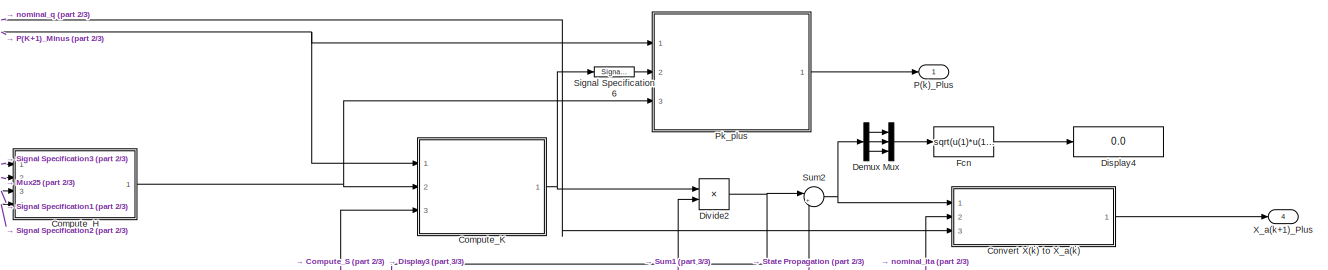
[diagram: Update - part 1/3, top right region]
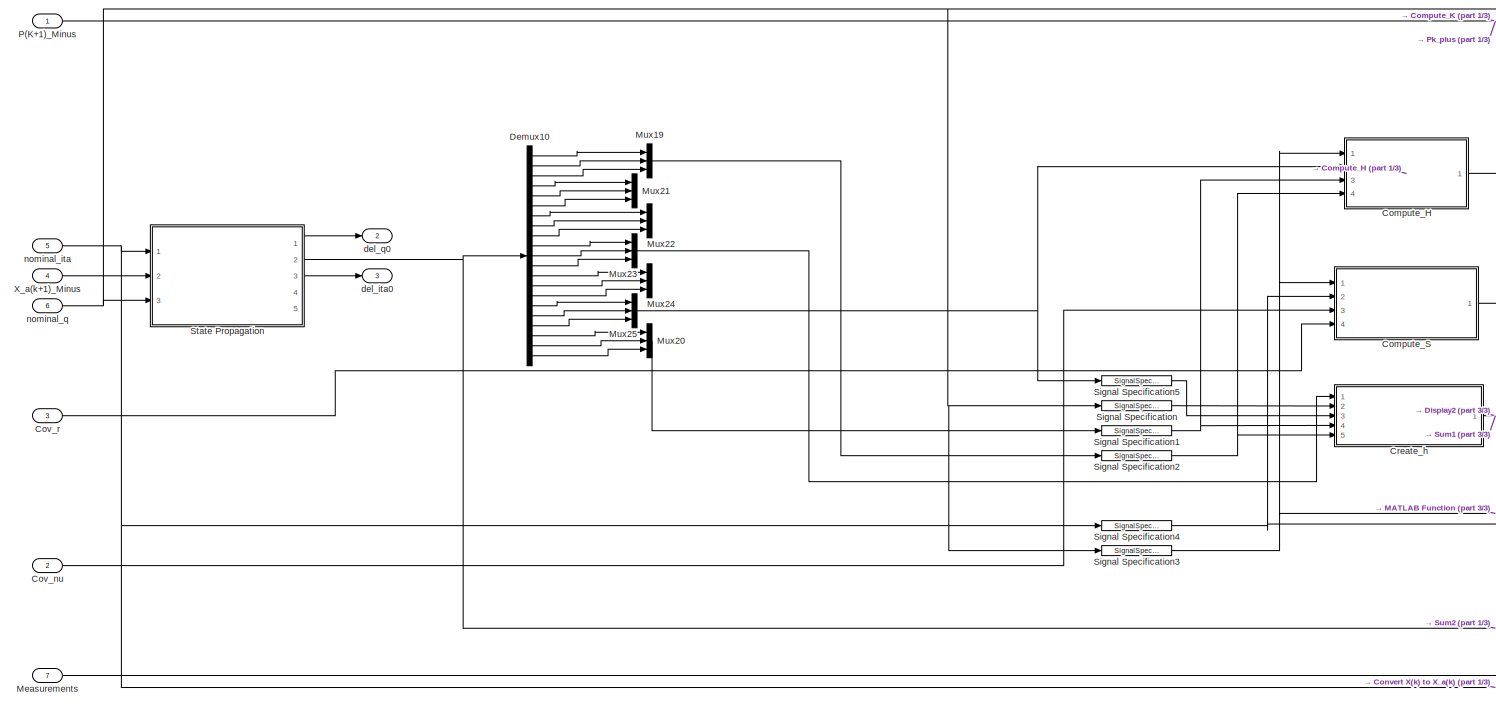
[diagram: Update - part 2/3, left side, full height]
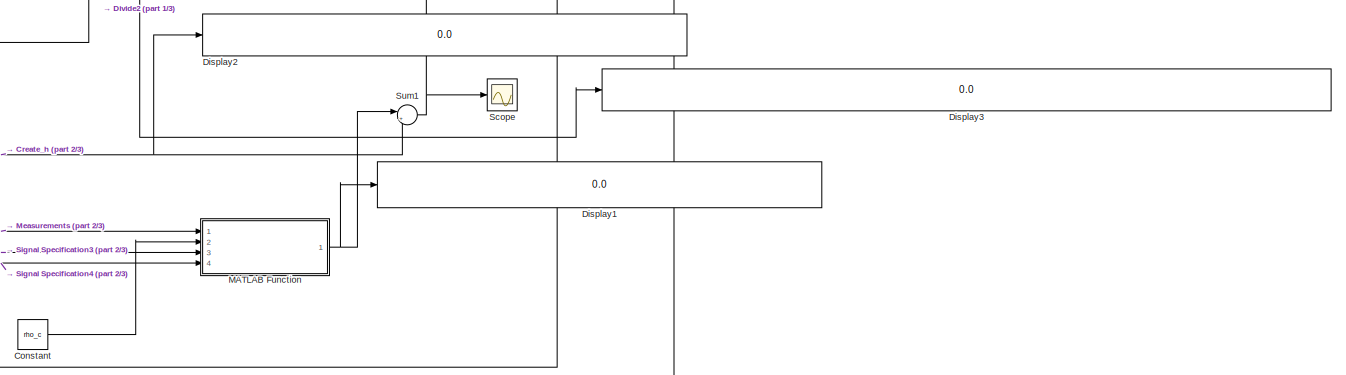
[diagram: Update - part 3/3, middle right region]
BLOCK [SubSystem] Update
  Ports = [7, 4]
  RequestExecContextInheritance = off
BLOCK [SubSystem] Update/Compute_H
  Ports = [4, 1]
  RequestExecContextInheritance = off
BLOCK [Outport] Update/Compute_H/H_k
  IconDisplay = Port number
BLOCK [Concatenate] Update/Compute_H/Matrix Concatenate
  Mode = Multidimensional array
  Ports = [2, 1]
BLOCK [SubSystem] Update/Compute_H/del_h1 (state)
  ErrorFcn = Stateflow.Translate.translate
  PermitHierarchicalResolution = ExplicitOnly
  Ports = [2, 1]
  RequestExecContextInheritance = off
  SFBlockType = MATLAB Function
  TreatAsAtomicUnit = on
BLOCK [Demux] Update/Compute_H/del_h1 (state)/ Demux 
  Outputs = 1
  Ports = [1, 1]
BLOCK [S-Function] Update/Compute_H/del_h1 (state)/ SFunction 
  EnableBusSupport = on
  FunctionName = sf_sfun
  PortCounts = [2 2]
  Ports = [2, 2]
  Tag = Stateflow S-Function Model_01 11
BLOCK [Terminator] Update/Compute_H/del_h1 (state)/ Terminator 
BLOCK [Outport] Update/Compute_H/del_h1 (state)/Matrix_1
  IconDisplay = Port number
BLOCK [Inport] Update/Compute_H/del_h1 (state)/q
  IconDisplay = Port number
BLOCK [Inport] Update/Compute_H/del_h1 (state)/rho_t_k
  IconDisplay = Port number
  Port = 2
BLOCK [SubSystem] Update/Compute_H/del_h2(state)
  ErrorFcn = Stateflow.Translate.translate
  PermitHierarchicalResolution = ExplicitOnly
  Ports = [2, 1]
  RequestExecContextInheritance = off
  SFBlockType = MATLAB Function
  TreatAsAtomicUnit = on
BLOCK [Demux] Update/Compute_H/del_h2(state)/ Demux 
  Outputs = 1
  Ports = [1, 1]
BLOCK [S-Function] Update/Compute_H/del_h2(state)/ SFunction 
  EnableBusSupport = on
  FunctionName = sf_sfun
  PortCounts = [2 2]
  Ports = [2, 2]
  Tag = Stateflow S-Function Model_01 13
BLOCK [Terminator] Update/Compute_H/del_h2(state)/ Terminator 
BLOCK [Outport] Update/Compute_H/del_h2(state)/Matrix_2
  IconDisplay = Port number
BLOCK [Inport] Update/Compute_H/del_h2(state)/del_ita_v_k
  IconDisplay = Port number
BLOCK [Inport] Update/Compute_H/del_h2(state)/del_q_v_k
  IconDisplay = Port number
  Port = 2
BLOCK [Inport] Update/Compute_H/del_ita_v_k
  IconDisplay = Port number
  Port = 3
BLOCK [Inport] Update/Compute_H/del_q_v_k
  IconDisplay = Port number
  Port = 4
BLOCK [Inport] Update/Compute_H/q_k
  IconDisplay = Port number
BLOCK [Inport] Update/Compute_H/rho_t_k
  IconDisplay = Port number
  Port = 2
BLOCK [SubSystem] Update/Compute_K
  ErrorFcn = Stateflow.Translate.translate
  PermitHierarchicalResolution = ExplicitOnly
  Ports = [3, 1]
  RequestExecContextInheritance = off
  SFBlockType = MATLAB Function
  TreatAsAtomicUnit = on
BLOCK [Demux] Update/Compute_K/ Demux 
  Outputs = 1
  Ports = [1, 1]
BLOCK [S-Function] Update/Compute_K/ SFunction 
  EnableBusSupport = on
  FunctionName = sf_sfun
  PortCounts = [3 2]
  Ports = [3, 2]
  Tag = Stateflow S-Function Model_01 12
BLOCK [Terminator] Update/Compute_K/ Terminator 
BLOCK [Inport] Update/Compute_K/Hk
  IconDisplay = Port number
  Port = 2
BLOCK [Outport] Update/Compute_K/K
  IconDisplay = Port number
BLOCK [Inport] Update/Compute_K/Pk
  IconDisplay = Port number
BLOCK [Inport] Update/Compute_K/Sk
  IconDisplay = Port number
  Port = 3
BLOCK [SubSystem] Update/Compute_S
  ErrorFcn = Stateflow.Translate.translate
  PermitHierarchicalResolution = ExplicitOnly
  Ports = [4, 1]
  RequestExecContextInheritance = off
  SFBlockType = MATLAB Function
  TreatAsAtomicUnit = on
BLOCK [Demux] Update/Compute_S/ Demux 
  Outputs = 1
  Ports = [1, 1]
BLOCK [S-Function] Update/Compute_S/ SFunction 
  EnableBusSupport = on
  FunctionName = sf_sfun
  PortCounts = [4 2]
  Ports = [4, 2]
  Tag = Stateflow S-Function Model_01 14
BLOCK [Terminator] Update/Compute_S/ Terminator 
BLOCK [Outport] Update/Compute_S/S
  IconDisplay = Port number
BLOCK [Inport] Update/Compute_S/cov_nu
  IconDisplay = Port number
  Port = 4
BLOCK [Inport] Update/Compute_S/cov_r
  IconDisplay = Port number
  Port = 3
BLOCK [Inport] Update/Compute_S/ita_k
  IconDisplay = Port number
  Port = 2
BLOCK [Inport] Update/Compute_S/q_k
  IconDisplay = Port number
BLOCK [Constant] Update/Constant
  Value = rho_c
BLOCK [SubSystem] Update/Convert X(k) to X_a(k)
  Ports = [3, 1]
  RequestExecContextInheritance = off
BLOCK [SubSystem] Update/Convert X(k) to X_a(k)/Create actual ita
  ErrorFcn = Stateflow.Translate.translate
  PermitHierarchicalResolution = ExplicitOnly
  Ports = [2, 1]
  RequestExecContextInheritance = off
  SFBlockType = MATLAB Function
  TreatAsAtomicUnit = on
BLOCK [Demux] Update/Convert X(k) to X_a(k)/Create actual ita/ Demux 
  Outputs = 1
  Ports = [1, 1]
BLOCK [S-Function] Update/Convert X(k) to X_a(k)/Create actual ita/ SFunction 
  EnableBusSupport = on
  FunctionName = sf_sfun
  PortCounts = [2 2]
  Ports = [2, 2]
  Tag = Stateflow S-Function Model_01 20
BLOCK [Terminator] Update/Convert X(k) to X_a(k)/Create actual ita/ Terminator 
BLOCK [Inport] Update/Convert X(k) to X_a(k)/Create actual ita/del_ita_v
  IconDisplay = Port number
BLOCK [Outport] Update/Convert X(k) to X_a(k)/Create actual ita/ita
  IconDisplay = Port number
BLOCK [Inport] Update/Convert X(k) to X_a(k)/Create actual ita/nominal_ita
  IconDisplay = Port number
  Port = 2
BLOCK [SubSystem] Update/Convert X(k) to X_a(k)/Create actual q
  ErrorFcn = Stateflow.Translate.translate
  PermitHierarchicalResolution = ExplicitOnly
  Ports = [2, 1]
  RequestExecContextInheritance = off
  SFBlockType = MATLAB Function
  TreatAsAtomicUnit = on
BLOCK [Demux] Update/Convert X(k) to X_a(k)/Create actual q/ Demux 
  Outputs = 1
  Ports = [1, 1]
BLOCK [S-Function] Update/Convert X(k) to X_a(k)/Create actual q/ SFunction 
  EnableBusSupport = on
  FunctionName = sf_sfun
  PortCounts = [2 2]
  Ports = [2, 2]
  Tag = Stateflow S-Function Model_01 19
BLOCK [Terminator] Update/Convert X(k) to X_a(k)/Create actual q/ Terminator 
BLOCK [Inport] Update/Convert X(k) to X_a(k)/Create actual q/del_q_v
  IconDisplay = Port number
  Port = 2
BLOCK [Inport] Update/Convert X(k) to X_a(k)/Create actual q/nominal_q
  IconDisplay = Port number
BLOCK [Outport] Update/Convert X(k) to X_a(k)/Create actual q/q
  IconDisplay = Port number
BLOCK [Demux] Update/Convert X(k) to X_a(k)/Demux3
  DisplayOption = bar
  Outputs = 21
  Ports = [1, 21]
BLOCK [Demux] Update/Convert X(k) to X_a(k)/Demux4
  DisplayOption = bar
  Ports = [1, 4]
BLOCK [Demux] Update/Convert X(k) to X_a(k)/Demux5
  DisplayOption = bar
  Ports = [1, 4]
BLOCK [Display] Update/Convert X(k) to X_a(k)/Display
  Decimation = 1
  Ports = [1]
BLOCK [Display] Update/Convert X(k) to X_a(k)/Display2
  Decimation = 1
  Ports = [1]
BLOCK [Fcn] Update/Convert X(k) to X_a(k)/Fcn1
  Expr = sqrt(u(1)*u(1) + u(2)*u(2) + u(3)*u(3))
BLOCK [Mux] Update/Convert X(k) to X_a(k)/Mux10
  DisplayOption = bar
  Inputs = 3
  Ports = [3, 1]
BLOCK [Mux] Update/Convert X(k) to X_a(k)/Mux11
  DisplayOption = bar
  Inputs = 3
  Ports = [3, 1]
BLOCK [Mux] Update/Convert X(k) to X_a(k)/Mux12
  DisplayOption = bar
  Inputs = 23
  Ports = [23, 1]
BLOCK [Reference] Update/Convert X(k) to X_a(k)/Quaternion Normalize  REF=aerolibutil/Quaternion
Normalize
  Ports = [1, 1]
  SourceBlock = aerolibutil/Quaternion\nNormalize
  SourceType = Quaternion Normalize
BLOCK [Reference] Update/Convert X(k) to X_a(k)/Quaternion Normalize1  REF=aerolibutil/Quaternion
Normalize
  Ports = [1, 1]
  SourceBlock = aerolibutil/Quaternion\nNormalize
  SourceType = Quaternion Normalize
BLOCK [SignalSpecification] Update/Convert X(k) to X_a(k)/Signal Specification
  Dimensions = 3
  OutDataTypeStr = double
  SignalType = real
BLOCK [SignalSpecification] Update/Convert X(k) to X_a(k)/Signal Specification1
  Dimensions = 4
  OutDataTypeStr = double
  SignalType = real
BLOCK [SignalSpecification] Update/Convert X(k) to X_a(k)/Signal Specification2
  Dimensions = 4
  OutDataTypeStr = double
  SignalType = real
BLOCK [SignalSpecification] Update/Convert X(k) to X_a(k)/Signal Specification3
  Dimensions = 3
  OutDataTypeStr = double
  SignalType = real
BLOCK [Inport] Update/Convert X(k) to X_a(k)/X(k)
  IconDisplay = Port number
BLOCK [Outport] Update/Convert X(k) to X_a(k)/X_a(k)
  IconDisplay = Port number
BLOCK [Inport] Update/Convert X(k) to X_a(k)/nominal_ita
  IconDisplay = Port number
  Port = 2
BLOCK [Inport] Update/Convert X(k) to X_a(k)/nominal_q
  IconDisplay = Port number
  Port = 3
BLOCK [Inport] Update/Cov_nu
  IconDisplay = Port number
  Port = 2
BLOCK [Inport] Update/Cov_r
  IconDisplay = Port number
  Port = 3
BLOCK [SubSystem] Update/Create_h
  ErrorFcn = Stateflow.Translate.translate
  PermitHierarchicalResolution = ExplicitOnly
  Ports = [5, 1]
  RequestExecContextInheritance = off
  SFBlockType = MATLAB Function
  TreatAsAtomicUnit = on
BLOCK [Demux] Update/Create_h/ Demux 
  Outputs = 1
  Ports = [1, 1]
BLOCK [S-Function] Update/Create_h/ SFunction 
  EnableBusSupport = on
  FunctionName = sf_sfun
  PortCounts = [5 2]
  Ports = [5, 2]
  Tag = Stateflow S-Function Model_01 15
BLOCK [Terminator] Update/Create_h/ Terminator 
BLOCK [Inport] Update/Create_h/del_ita_v
  IconDisplay = Port number
  Port = 4
BLOCK [Inport] Update/Create_h/del_q_v
  IconDisplay = Port number
  Port = 5
BLOCK [Outport] Update/Create_h/h
  IconDisplay = Port number
BLOCK [Inport] Update/Create_h/q
  IconDisplay = Port number
  Port = 2
BLOCK [Inport] Update/Create_h/r
  IconDisplay = Port number
BLOCK [Inport] Update/Create_h/rho_t
  IconDisplay = Port number
  Port = 3
BLOCK [Demux] Update/Demux
  DisplayOption = bar
  Outputs = 3
  Ports = [1, 3]
BLOCK [Demux] Update/Demux10
  DisplayOption = bar
  Outputs = 21
  Ports = [1, 21]
BLOCK [Display] Update/Display1
  Decimation = 1
  Ports = [1]
BLOCK [Display] Update/Display2
  Decimation = 1
  Ports = [1]
BLOCK [Display] Update/Display3
  Decimation = 1
  Ports = [1]
BLOCK [Display] Update/Display4
  Decimation = 1
  Ports = [1]
BLOCK [Product] Update/Divide2
  InputSameDT = off
  Inputs = **
  Multiplication = Matrix(*)
  OutDataTypeStr = Inherit: Inherit via internal rule
  Ports = [2, 1]
  RndMeth = Floor
  SaturateOnIntegerOverflow = off
BLOCK [Fcn] Update/Fcn
  Expr = sqrt(u(1)*u(1) + u(2)*u(2) + u(3)*u(3))
BLOCK [SubSystem] Update/MATLAB Function
  ErrorFcn = Stateflow.Translate.translate
  PermitHierarchicalResolution = ExplicitOnly
  Ports = [4, 1]
  RequestExecContextInheritance = off
  SFBlockType = MATLAB Function
  TreatAsAtomicUnit = on
BLOCK [Demux] Update/MATLAB Function/ Demux 
  Outputs = 1
  Ports = [1, 1]
BLOCK [S-Function] Update/MATLAB Function/ SFunction 
  EnableBusSupport = on
  FunctionName = sf_sfun
  PortCounts = [4 2]
  Ports = [4, 2]
  Tag = Stateflow S-Function Model_01 25
BLOCK [Terminator] Update/MATLAB Function/ Terminator 
BLOCK [Inport] Update/MATLAB Function/ita_k
  IconDisplay = Port number
  Port = 4
BLOCK [Inport] Update/MATLAB Function/q_k
  IconDisplay = Port number
  Port = 3
BLOCK [Inport] Update/MATLAB Function/rho_c
  IconDisplay = Port number
  Port = 2
BLOCK [Inport] Update/MATLAB Function/signal
  IconDisplay = Port number
BLOCK [Outport] Update/MATLAB Function/zk
  IconDisplay = Port number
BLOCK [Inport] Update/Measurements
  IconDisplay = Port number
  Port = 7
BLOCK [Mux] Update/Mux
  DisplayOption = bar
  Inputs = 3
  Ports = [3, 1]
BLOCK [Mux] Update/Mux19
  DisplayOption = bar
  Inputs = 3
  Ports = [3, 1]
BLOCK [Mux] Update/Mux20
  DisplayOption = bar
  Inputs = 3
  Ports = [3, 1]
BLOCK [Mux] Update/Mux21
  DisplayOption = bar
  Inputs = 3
  Ports = [3, 1]
BLOCK [Mux] Update/Mux22
  DisplayOption = bar
  Inputs = 3
  Ports = [3, 1]
BLOCK [Mux] Update/Mux23
  DisplayOption = bar
  Inputs = 3
  Ports = [3, 1]
BLOCK [Mux] Update/Mux24
  DisplayOption = bar
  Inputs = 3
  Ports = [3, 1]
BLOCK [Mux] Update/Mux25
  DisplayOption = bar
  Inputs = 3
  Ports = [3, 1]
BLOCK [Inport] Update/P(K+1)_Minus
  IconDisplay = Port number
BLOCK [Outport] Update/P(k)_Plus
  IconDisplay = Port number
BLOCK [SubSystem] Update/Pk_plus
  ErrorFcn = Stateflow.Translate.translate
  PermitHierarchicalResolution = ExplicitOnly
  Ports = [3, 1]
  RequestExecContextInheritance = off
  SFBlockType = MATLAB Function
  TreatAsAtomicUnit = on
BLOCK [Demux] Update/Pk_plus/ Demux 
  Outputs = 1
  Ports = [1, 1]
BLOCK [S-Function] Update/Pk_plus/ SFunction 
  EnableBusSupport = on
  FunctionName = sf_sfun
  PortCounts = [3 2]
  Ports = [3, 2]
  Tag = Stateflow S-Function Model_01 18
BLOCK [Terminator] Update/Pk_plus/ Terminator 
BLOCK [Inport] Update/Pk_plus/H
  IconDisplay = Port number
  Port = 3
BLOCK [Inport] Update/Pk_plus/K
  IconDisplay = Port number
  Port = 2
BLOCK [Inport] Update/Pk_plus/Pk
  IconDisplay = Port number
BLOCK [Outport] Update/Pk_plus/Pkplus
  IconDisplay = Port number
BLOCK [Scope] Update/Scope
  DataFormat = StructureWithTime
  Floating = off
  NumInputPorts = 1
  Ports = [1]
  SampleTime = 0
  SaveName = ScopeData11
  ShowLegends = off
  YMax = 125
  YMin = -150
BLOCK [SignalSpecification] Update/Signal Specification
  Dimensions = 4
  OutDataTypeStr = double
BLOCK [SignalSpecification] Update/Signal Specification1
  Dimensions = 3
  OutDataTypeStr = double
BLOCK [SignalSpecification] Update/Signal Specification2
  Dimensions = 3
  OutDataTypeStr = double
BLOCK [SignalSpecification] Update/Signal Specification3
  Dimensions = 4
  OutDataTypeStr = double
BLOCK [SignalSpecification] Update/Signal Specification4
  Dimensions = 4
  OutDataTypeStr = double
BLOCK [SignalSpecification] Update/Signal Specification5
  Dimensions = 3
  OutDataTypeStr = double
BLOCK [SignalSpecification] Update/Signal Specification6
  Dimensions = [21,6]
BLOCK [SubSystem] Update/State Propagation
  Ports = [3, 5]
  RequestExecContextInheritance = off
BLOCK [SubSystem] Update/State Propagation/Create del_q
  ErrorFcn = Stateflow.Translate.translate
  PermitHierarchicalResolution = ExplicitOnly
  Ports = [2, 1]
  RequestExecContextInheritance = off
  SFBlockType = MATLAB Function
  TreatAsAtomicUnit = on
BLOCK [Demux] Update/State Propagation/Create del_q/ Demux 
  Outputs = 1
  Ports = [1, 1]
BLOCK [S-Function] Update/State Propagation/Create del_q/ SFunction 
  EnableBusSupport = on
  FunctionName = sf_sfun
  PortCounts = [2 2]
  Ports = [2, 2]
  Tag = Stateflow S-Function Model_01 16
BLOCK [Terminator] Update/State Propagation/Create del_q/ Terminator 
BLOCK [Outport] Update/State Propagation/Create del_q/del_q
  IconDisplay = Port number
BLOCK [Inport] Update/State Propagation/Create del_q/nominal_q
  IconDisplay = Port number
BLOCK [Inport] Update/State Propagation/Create del_q/q
  IconDisplay = Port number
  Port = 2
BLOCK [SubSystem] Update/State Propagation/Create del_q1
  ErrorFcn = Stateflow.Translate.translate
  PermitHierarchicalResolution = ExplicitOnly
  Ports = [2, 1]
  RequestExecContextInheritance = off
  SFBlockType = MATLAB Function
  TreatAsAtomicUnit = on
BLOCK [Demux] Update/State Propagation/Create del_q1/ Demux 
  Outputs = 1
  Ports = [1, 1]
BLOCK [S-Function] Update/State Propagation/Create del_q1/ SFunction 
  EnableBusSupport = on
  FunctionName = sf_sfun
  PortCounts = [2 2]
  Ports = [2, 2]
  Tag = Stateflow S-Function Model_01 17
BLOCK [Terminator] Update/State Propagation/Create del_q1/ Terminator 
BLOCK [Outport] Update/State Propagation/Create del_q1/del_ita
  IconDisplay = Port number
BLOCK [Inport] Update/State Propagation/Create del_q1/ita
  IconDisplay = Port number
BLOCK [Inport] Update/State Propagation/Create del_q1/nominal_ita
  IconDisplay = Port number
  Port = 2
BLOCK [Demux] Update/State Propagation/Demux1
  DisplayOption = bar
  Outputs = 23
  Ports = [1, 23]
BLOCK [Demux] Update/State Propagation/Demux2
  DisplayOption = bar
  Ports = [1, 4]
BLOCK [Demux] Update/State Propagation/Demux9
  DisplayOption = bar
  Ports = [1, 4]
BLOCK [Mux] Update/State Propagation/Mux17
  DisplayOption = bar
  Ports = [4, 1]
BLOCK [Mux] Update/State Propagation/Mux18
  DisplayOption = bar
  Ports = [4, 1]
BLOCK [Mux] Update/State Propagation/Mux9
  DisplayOption = bar
  Inputs = 21
  Ports = [21, 1]
BLOCK [SignalSpecification] Update/State Propagation/Signal Specification
  Dimensions = 4
  OutDataTypeStr = double
BLOCK [SignalSpecification] Update/State Propagation/Signal Specification1
  Dimensions = 4
  OutDataTypeStr = double
BLOCK [Outport] Update/State Propagation/X(k)
  IconDisplay = Port number
  Port = 2
BLOCK [Inport] Update/State Propagation/X_a(k)
  IconDisplay = Port number
  Port = 2
BLOCK [Outport] Update/State Propagation/del_ita_0(k) 
  IconDisplay = Port number
  Port = 3
BLOCK [Outport] Update/State Propagation/del_q_0(k)
  IconDisplay = Port number
BLOCK [Outport] Update/State Propagation/ita(k+1)_Minus
  IconDisplay = Port number
  Port = 5
BLOCK [Inport] Update/State Propagation/nominal_ita
  IconDisplay = Port number
BLOCK [Inport] Update/State Propagation/nominal_q
  IconDisplay = Port number
  Port = 3
BLOCK [Outport] Update/State Propagation/q(k+1)_Minus
  IconDisplay = Port number
  Port = 4
BLOCK [Sum] Update/Sum1
  IconShape = round
  InputSameDT = off
  Inputs = |+-
  OutDataTypeStr = Inherit: Inherit via internal rule
  Ports = [2, 1]
  SaturateOnIntegerOverflow = off
BLOCK [Sum] Update/Sum2
  IconShape = round
  InputSameDT = off
  Inputs = |++
  OutDataTypeStr = Inherit: Inherit via internal rule
  Ports = [2, 1]
  SaturateOnIntegerOverflow = off
BLOCK [Inport] Update/X_a(k+1)_Minus
  IconDisplay = Port number
  Port = 4
BLOCK [Outport] Update/X_a(k+1)_Plus
  IconDisplay = Port number
  Port = 4
BLOCK [Outport] Update/del_ita0
  IconDisplay = Port number
  Port = 3
BLOCK [Outport] Update/del_q0
  IconDisplay = Port number
  Port = 2
BLOCK [Inport] Update/nominal_ita 
  IconDisplay = Port number
  Port = 5
BLOCK [Inport] Update/nominal_q
  IconDisplay = Port number
  Port = 6
BLOCK [Constant] cov_nu
  Value = Cov_nu
  VectorParams1D = off
BLOCK [Constant] cov_r
  Value = Cov_r
  VectorParams1D = off
BLOCK [Constant] e_force
  Value = [e_force_x;e_force_y;e_force_z]
BLOCK [Constant] ext. Torques
  Value = [tau_1;tau_2;tau_3]
BLOCK [Constant] n
  Value = n
BLOCK [Constant] sig_f 
  Value = sig_f
BLOCK [Constant] sig_p
  Value = sig_p
BLOCK [Constant] sig_tau
  Value = sig_tau
BLOCK [Constant] sig_theta
  Value = sig_theta
BLOCK [Constant] t_delta
  Value = t_delta
ANNOTATION (root): xk_
ANNOTATION Prediction/Quaternion (nominal condition): xk_a+
ANNOTATION Update/Convert X(k) to X_a(k): xk+
LINE Delay1:1 -> Prediction:4
LINE Delay:1 -> Prediction:7
LINE Demux1:1 -> Mux7:4
LINE Demux1:2 -> Mux7:1
LINE Demux1:3 -> Mux7:2
LINE Demux1:4 -> Mux7:3
LINE Demux2:1 -> Mux9:1
LINE Demux2:2 -> Mux9:2
LINE Demux2:3 -> Mux9:3
NET Demux2:4 -> Mux8:1, Scope7:1
LINE Demux2:5 -> Mux8:2
LINE Demux2:6 -> Mux8:3
LINE Demux2:7 -> Mux8:4
LINE Demux:1 -> Mux:1
LINE Demux:10 -> Mux3:3
LINE Demux:11 -> Mux4:1
LINE Demux:12 -> Mux4:2
LINE Demux:13 -> Mux4:3
LINE Demux:14 -> Mux5:1
LINE Demux:15 -> Mux5:2
LINE Demux:16 -> Mux5:3
LINE Demux:2 -> Mux:2
LINE Demux:20 -> Mux1:1
LINE Demux:21 -> Mux1:2
LINE Demux:22 -> Mux1:3
LINE Demux:23 -> Mux1:4
LINE Demux:3 -> Mux:3
NET Demux:4 -> Mux:4, Scope9:1
LINE Demux:5 -> Mux2:1
LINE Demux:6 -> Mux2:2
LINE Demux:7 -> Mux2:3
LINE Demux:8 -> Mux3:1
LINE Demux:9 -> Mux3:2
LINE Direction Cosine Matrix to Quaternions:1 -> Demux1:1
LINE From Workspace1:1 -> Direction Cosine Matrix to Quaternions:1
LINE From Workspace2:1 -> Mux6:1
NET Initial States :1 -> Delay:2, Prediction:8
LINE MATLAB Function:1 -> If:1
LINE Mux1:1 -> Scope1:1
LINE Mux2:1 -> Scope6:1
LINE Mux4:1 -> Scope2:1
LINE Mux5:1 -> Scope4:1
NET Mux6:1 -> Demux2:1, Display1:1, Update:7
LINE Mux7:1 -> Mux6:2
NET Mux8:1 -> Display2:1, Scope3:1, To Workspace:1
LINE Mux9:1 -> Scope5:1
LINE Mux:1 -> Scope:1
LINE Pk(0):1 -> Delay1:2
LINE Prediction/Demux10:1 -> Prediction/Mux19:1
LINE Prediction/Demux10:10 -> Prediction/Mux22:3
LINE Prediction/Demux10:11 -> Prediction/Mux23:1
LINE Prediction/Demux10:12 -> Prediction/Mux23:2
LINE Prediction/Demux10:13 -> Prediction/Mux23:3
LINE Prediction/Demux10:14 -> Prediction/Mux24:1
LINE Prediction/Demux10:15 -> Prediction/Mux24:2
LINE Prediction/Demux10:16 -> Prediction/Mux24:3
LINE Prediction/Demux10:17 -> Prediction/Mux25:1
LINE Prediction/Demux10:18 -> Prediction/Mux25:2
LINE Prediction/Demux10:19 -> Prediction/Mux25:3
LINE Prediction/Demux10:2 -> Prediction/Mux19:2
LINE Prediction/Demux10:20 -> Prediction/Mux20:1
LINE Prediction/Demux10:21 -> Prediction/Mux20:2
LINE Prediction/Demux10:22 -> Prediction/Mux20:3
LINE Prediction/Demux10:23 -> Prediction/Mux20:4
LINE Prediction/Demux10:3 -> Prediction/Mux19:3
LINE Prediction/Demux10:4 -> Prediction/Mux19:4
LINE Prediction/Demux10:5 -> Prediction/Mux21:1
LINE Prediction/Demux10:6 -> Prediction/Mux21:2
LINE Prediction/Demux10:7 -> Prediction/Mux21:3
LINE Prediction/Demux10:8 -> Prediction/Mux22:1
LINE Prediction/Demux10:9 -> Prediction/Mux22:2
NET Prediction/Dynamic Model (Differential Equations)/Add:1 -> Prediction/Dynamic Model (Differential Equations)/Discrete-Time Integrator1:1, Prediction/Dynamic Model (Differential Equations)/Scope:1, Prediction/Dynamic Model (Differential Equations)/omega_dot:1
NET Prediction/Dynamic Model (Differential Equations)/Delay1:1 -> Prediction/Dynamic Model (Differential Equations)/Discrete-Time Integrator4:2, Prediction/Dynamic Model (Differential Equations)/Translation:2
NET Prediction/Dynamic Model (Differential Equations)/Delay:1 -> Prediction/Dynamic Model (Differential Equations)/Discrete-Time Integrator3:2, Prediction/Dynamic Model (Differential Equations)/Translation:4
LINE Prediction/Dynamic Model (Differential Equations)/Demux1:1 -> Prediction/Dynamic Model (Differential Equations)/Mux9:1
LINE Prediction/Dynamic Model (Differential Equations)/Demux1:10 -> Prediction/Dynamic Model (Differential Equations)/Mux13:3
LINE Prediction/Dynamic Model (Differential Equations)/Demux1:11 -> Prediction/Dynamic Model (Differential Equations)/Mux11:1
LINE Prediction/Dynamic Model (Differential Equations)/Demux1:12 -> Prediction/Dynamic Model (Differential Equations)/Mux11:2
LINE Prediction/Dynamic Model (Differential Equations)/Demux1:13 -> Prediction/Dynamic Model (Differential Equations)/Mux11:3
LINE Prediction/Dynamic Model (Differential Equations)/Demux1:14 -> Prediction/Dynamic Model (Differential Equations)/Mux12:1
LINE Prediction/Dynamic Model (Differential Equations)/Demux1:15 -> Prediction/Dynamic Model (Differential Equations)/Mux12:2
LINE Prediction/Dynamic Model (Differential Equations)/Demux1:16 -> Prediction/Dynamic Model (Differential Equations)/Mux12:3
LINE Prediction/Dynamic Model (Differential Equations)/Demux1:17 -> Prediction/Dynamic Model (Differential Equations)/Mux14:1
LINE Prediction/Dynamic Model (Differential Equations)/Demux1:18 -> Prediction/Dynamic Model (Differential Equations)/Mux14:2
LINE Prediction/Dynamic Model (Differential Equations)/Demux1:19 -> Prediction/Dynamic Model (Differential Equations)/Mux14:3
LINE Prediction/Dynamic Model (Differential Equations)/Demux1:2 -> Prediction/Dynamic Model (Differential Equations)/Mux9:2
LINE Prediction/Dynamic Model (Differential Equations)/Demux1:20 -> Prediction/Dynamic Model (Differential Equations)/Mux15:1
LINE Prediction/Dynamic Model (Differential Equations)/Demux1:21 -> Prediction/Dynamic Model (Differential Equations)/Mux15:2
LINE Prediction/Dynamic Model (Differential Equations)/Demux1:22 -> Prediction/Dynamic Model (Differential Equations)/Mux15:3
LINE Prediction/Dynamic Model (Differential Equations)/Demux1:23 -> Prediction/Dynamic Model (Differential Equations)/Mux15:4
LINE Prediction/Dynamic Model (Differential Equations)/Demux1:3 -> Prediction/Dynamic Model (Differential Equations)/Mux9:3
LINE Prediction/Dynamic Model (Differential Equations)/Demux1:4 -> Prediction/Dynamic Model (Differential Equations)/Mux9:4
LINE Prediction/Dynamic Model (Differential Equations)/Demux1:5 -> Prediction/Dynamic Model (Differential Equations)/Mux10:1
LINE Prediction/Dynamic Model (Differential Equations)/Demux1:6 -> Prediction/Dynamic Model (Differential Equations)/Mux10:2
LINE Prediction/Dynamic Model (Differential Equations)/Demux1:7 -> Prediction/Dynamic Model (Differential Equations)/Mux10:3
LINE Prediction/Dynamic Model (Differential Equations)/Demux1:8 -> Prediction/Dynamic Model (Differential Equations)/Mux13:1
LINE Prediction/Dynamic Model (Differential Equations)/Demux1:9 -> Prediction/Dynamic Model (Differential Equations)/Mux13:2
LINE Prediction/Dynamic Model (Differential Equations)/Demux:1 -> Prediction/Dynamic Model (Differential Equations)/Mux:1
LINE Prediction/Dynamic Model (Differential Equations)/Demux:10 -> Prediction/Dynamic Model (Differential Equations)/Mux3:3
LINE Prediction/Dynamic Model (Differential Equations)/Demux:11 -> Prediction/Dynamic Model (Differential Equations)/Mux4:1
LINE Prediction/Dynamic Model (Differential Equations)/Demux:12 -> Prediction/Dynamic Model (Differential Equations)/Mux4:2
LINE Prediction/Dynamic Model (Differential Equations)/Demux:13 -> Prediction/Dynamic Model (Differential Equations)/Mux4:3
LINE Prediction/Dynamic Model (Differential Equations)/Demux:14 -> Prediction/Dynamic Model (Differential Equations)/Mux5:1
LINE Prediction/Dynamic Model (Differential Equations)/Demux:15 -> Prediction/Dynamic Model (Differential Equations)/Mux5:2
LINE Prediction/Dynamic Model (Differential Equations)/Demux:16 -> Prediction/Dynamic Model (Differential Equations)/Mux5:3
LINE Prediction/Dynamic Model (Differential Equations)/Demux:17 -> Prediction/Dynamic Model (Differential Equations)/Mux6:1
LINE Prediction/Dynamic Model (Differential Equations)/Demux:18 -> Prediction/Dynamic Model (Differential Equations)/Mux6:2
LINE Prediction/Dynamic Model (Differential Equations)/Demux:19 -> Prediction/Dynamic Model (Differential Equations)/Mux6:3
LINE Prediction/Dynamic Model (Differential Equations)/Demux:2 -> Prediction/Dynamic Model (Differential Equations)/Mux:2
LINE Prediction/Dynamic Model (Differential Equations)/Demux:20 -> Prediction/Dynamic Model (Differential Equations)/Mux1:1
LINE Prediction/Dynamic Model (Differential Equations)/Demux:21 -> Prediction/Dynamic Model (Differential Equations)/Mux1:2
LINE Prediction/Dynamic Model (Differential Equations)/Demux:22 -> Prediction/Dynamic Model (Differential Equations)/Mux1:3
LINE Prediction/Dynamic Model (Differential Equations)/Demux:23 -> Prediction/Dynamic Model (Differential Equations)/Mux1:4
LINE Prediction/Dynamic Model (Differential Equations)/Demux:3 -> Prediction/Dynamic Model (Differential Equations)/Mux:3
LINE Prediction/Dynamic Model (Differential Equations)/Demux:4 -> Prediction/Dynamic Model (Differential Equations)/Mux:4
LINE Prediction/Dynamic Model (Differential Equations)/Demux:5 -> Prediction/Dynamic Model (Differential Equations)/Mux2:1
LINE Prediction/Dynamic Model (Differential Equations)/Demux:6 -> Prediction/Dynamic Model (Differential Equations)/Mux2:2
LINE Prediction/Dynamic Model (Differential Equations)/Demux:7 -> Prediction/Dynamic Model (Differential Equations)/Mux2:3
LINE Prediction/Dynamic Model (Differential Equations)/Demux:8 -> Prediction/Dynamic Model (Differential Equations)/Mux3:1
LINE Prediction/Dynamic Model (Differential Equations)/Demux:9 -> Prediction/Dynamic Model (Differential Equations)/Mux3:2
LINE Prediction/Dynamic Model (Differential Equations)/Discrete-Time Integrator1:1 -> Prediction/Dynamic Model (Differential Equations)/Mux8:2
LINE Prediction/Dynamic Model (Differential Equations)/Discrete-Time Integrator2:1 -> Prediction/Dynamic Model (Differential Equations)/Quaternion Normalize:1
NET Prediction/Dynamic Model (Differential Equations)/Discrete-Time Integrator3:1 -> Prediction/Dynamic Model (Differential Equations)/Delay:1, Prediction/Dynamic Model (Differential Equations)/Discrete-Time Integrator4:1, Prediction/Dynamic Model (Differential Equations)/Mux8:5, Prediction/Dynamic Model (Differential Equations)/Scope2:1
NET Prediction/Dynamic Model (Differential Equations)/Discrete-Time Integrator4:1 -> Prediction/Dynamic Model (Differential Equations)/Delay1:1, Prediction/Dynamic Model (Differential Equations)/Mux8:4
LINE Prediction/Dynamic Model (Differential Equations)/Inertial parameters:1 -> Prediction/Dynamic Model (Differential Equations)/Mult:1
LINE Prediction/Dynamic Model (Differential Equations)/MATLAB Function:1 -> Prediction/Dynamic Model (Differential Equations)/Discrete-Time Integrator2:1
LINE Prediction/Dynamic Model (Differential Equations)/Mult:1 -> Prediction/Dynamic Model (Differential Equations)/Add:2
LINE Prediction/Dynamic Model (Differential Equations)/Mux10:1 -> Prediction/Dynamic Model (Differential Equations)/Signal Specification4:1
LINE Prediction/Dynamic Model (Differential Equations)/Mux11:1 -> Prediction/Dynamic Model (Differential Equations)/Signal Specification1:1
LINE Prediction/Dynamic Model (Differential Equations)/Mux12:1 -> Prediction/Dynamic Model (Differential Equations)/Signal Specification:1
LINE Prediction/Dynamic Model (Differential Equations)/Mux13:1 -> Prediction/Dynamic Model (Differential Equations)/Mux8:3
LINE Prediction/Dynamic Model (Differential Equations)/Mux14:1 -> Prediction/Dynamic Model (Differential Equations)/Mux8:6
LINE Prediction/Dynamic Model (Differential Equations)/Mux15:1 -> Prediction/Dynamic Model (Differential Equations)/Mux8:7
LINE Prediction/Dynamic Model (Differential Equations)/Mux3:1 -> Prediction/Dynamic Model (Differential Equations)/Signal Specification2:1
LINE Prediction/Dynamic Model (Differential Equations)/Mux7:1 -> Prediction/Dynamic Model (Differential Equations)/Add:1
LINE Prediction/Dynamic Model (Differential Equations)/Mux8:1 -> Prediction/Dynamic Model (Differential Equations)/int(X_a_dot):1
LINE Prediction/Dynamic Model (Differential Equations)/Mux9:1 -> Prediction/Dynamic Model (Differential Equations)/Signal Specification3:1
NET Prediction/Dynamic Model (Differential Equations)/Quaternion Normalize:1 -> Prediction/Dynamic Model (Differential Equations)/Mux8:1, Prediction/Dynamic Model (Differential Equations)/Scope1:1
LINE Prediction/Dynamic Model (Differential Equations)/Signal Specification2:1 -> Prediction/Dynamic Model (Differential Equations)/Inertial parameters:1
NET Prediction/Dynamic Model (Differential Equations)/Signal Specification3:1 -> Prediction/Dynamic Model (Differential Equations)/Discrete-Time Integrator2:2, Prediction/Dynamic Model (Differential Equations)/MATLAB Function:3
NET Prediction/Dynamic Model (Differential Equations)/Signal Specification4:1 -> Prediction/Dynamic Model (Differential Equations)/Discrete-Time Integrator1:2, Prediction/Dynamic Model (Differential Equations)/MATLAB Function:1, Prediction/Dynamic Model (Differential Equations)/create psi:1
LINE Prediction/Dynamic Model (Differential Equations)/Translation:1 -> Prediction/Dynamic Model (Differential Equations)/Discrete-Time Integrator3:1
LINE Prediction/Dynamic Model (Differential Equations)/X_a (0):1 -> Prediction/Dynamic Model (Differential Equations)/Demux:1
LINE Prediction/Dynamic Model (Differential Equations)/X_a (k):1 -> Prediction/Dynamic Model (Differential Equations)/Demux1:1
LINE Prediction/Dynamic Model (Differential Equations)/create psi/Fcn1:1 -> Prediction/Dynamic Model (Differential Equations)/create psi/psi_2:1
LINE Prediction/Dynamic Model (Differential Equations)/create psi/Fcn2:1 -> Prediction/Dynamic Model (Differential Equations)/create psi/psi_3 :1
LINE Prediction/Dynamic Model (Differential Equations)/create psi/Fcn:1 -> Prediction/Dynamic Model (Differential Equations)/create psi/psi_1:1
NET Prediction/Dynamic Model (Differential Equations)/create psi/om:1 -> Prediction/Dynamic Model (Differential Equations)/create psi/Fcn1:1, Prediction/Dynamic Model (Differential Equations)/create psi/Fcn2:1, Prediction/Dynamic Model (Differential Equations)/create psi/Fcn:1
LINE Prediction/Dynamic Model (Differential Equations)/create psi:1 -> Prediction/Dynamic Model (Differential Equations)/Mux7:1
LINE Prediction/Dynamic Model (Differential Equations)/create psi:2 -> Prediction/Dynamic Model (Differential Equations)/Mux7:2
LINE Prediction/Dynamic Model (Differential Equations)/create psi:3 -> Prediction/Dynamic Model (Differential Equations)/Mux7:3
LINE Prediction/Dynamic Model (Differential Equations)/e_force:1 -> Prediction/Dynamic Model (Differential Equations)/Translation:3
LINE Prediction/Dynamic Model (Differential Equations)/e_tau:1 -> Prediction/Dynamic Model (Differential Equations)/Mult:2
NET Prediction/Dynamic Model (Differential Equations)/n:1 -> Prediction/Dynamic Model (Differential Equations)/MATLAB Function:2, Prediction/Dynamic Model (Differential Equations)/Translation:1
LINE Prediction/Dynamic Model (Differential Equations):1 -> Prediction/q_dot:1
LINE Prediction/Dynamic Model (Differential Equations):2 -> Prediction/omega_dot:1
NET Prediction/Dynamic Model (Differential Equations):3 -> Prediction/Display:1, Prediction/X_a(k+1)_Minus :1
LINE Prediction/Mux21:1 -> Prediction/Signal Specification7:1
LINE Prediction/Mux22:1 -> Prediction/Signal Specification8:1
LINE Prediction/P(k)_Plus:1 -> Prediction/Propagation Engine:2
LINE Prediction/Propagation Engine/Divide1:1 -> Prediction/Propagation Engine/Phi_P_PhiT:1
LINE Prediction/Propagation Engine/Divide:1 -> Prediction/Propagation Engine/Divide1:1
LINE Prediction/Propagation Engine/Math Function:1 -> Prediction/Propagation Engine/Divide1:2
LINE Prediction/Propagation Engine/P(k):1 -> Prediction/Propagation Engine/Divide:2
LINE Prediction/Propagation Engine/Propagation Engine/Constant1:1 -> Prediction/Propagation Engine/Propagation Engine/Matrix Concatenate3:2
NET Prediction/Propagation Engine/Propagation Engine/Constant2:1 -> Prediction/Propagation Engine/Propagation Engine/Matrix Concatenate4:1, Prediction/Propagation Engine/Propagation Engine/Matrix Concatenate5:1
NET Prediction/Propagation Engine/Propagation Engine/Constant3:1 -> Prediction/Propagation Engine/Propagation Engine/Matrix Concatenate4:3, Prediction/Propagation Engine/Propagation Engine/Matrix Concatenate5:2
LINE Prediction/Propagation Engine/Propagation Engine/Constant5:1 -> Prediction/Propagation Engine/Propagation Engine/Matrix Concatenate2:3
LINE Prediction/Propagation Engine/Propagation Engine/Constant6:1 -> Prediction/Propagation Engine/Propagation Engine/Matrix Concatenate:2
NET Prediction/Propagation Engine/Propagation Engine/Constant7:1 -> Prediction/Propagation Engine/Propagation Engine/Matrix Concatenate1:1, Prediction/Propagation Engine/Propagation Engine/Matrix Concatenate2:1
NET Prediction/Propagation Engine/Propagation Engine/Constant8:1 -> Prediction/Propagation Engine/Propagation Engine/Matrix Concatenate1:3, Prediction/Propagation Engine/Propagation Engine/Matrix Concatenate2:2
LINE Prediction/Propagation Engine/Propagation Engine/Constant:1 -> Prediction/Propagation Engine/Propagation Engine/Product:2
LINE Prediction/Propagation Engine/Propagation Engine/Create M1:1 -> Prediction/Propagation Engine/Propagation Engine/Rotation sub-system:4
LINE Prediction/Propagation Engine/Propagation Engine/Create M:1 -> Prediction/Propagation Engine/Propagation Engine/Rotation sub-system:2
NET Prediction/Propagation Engine/Propagation Engine/Create Q_r_k/Constant1:1 -> Prediction/Propagation Engine/Propagation Engine/Create Q_r_k/Matrix Concatenate3:3, Prediction/Propagation Engine/Propagation Engine/Create Q_r_k/Matrix Concatenate4:3, Prediction/Propagation Engine/Propagation Engine/Create Q_r_k/Matrix Concatenate5:1, Prediction/Propagation Engine/Propagation Engine/Create Q_r_k/Matrix Concatenate5:2
LINE Prediction/Propagation Engine/Propagation Engine/Create Q_r_k/Constant:1 -> Prediction/Propagation Engine/Propagation Engine/Create Q_r_k/Product:2
LINE Prediction/Propagation Engine/Propagation Engine/Create Q_r_k/Math Function:1 -> Prediction/Propagation Engine/Propagation Engine/Create Q_r_k/Matrix Concatenate4:1
LINE Prediction/Propagation Engine/Propagation Engine/Create Q_r_k/Matrix Concatenate3:1 -> Prediction/Propagation Engine/Propagation Engine/Create Q_r_k/Matrix Concatenate6:1
LINE Prediction/Propagation Engine/Propagation Engine/Create Q_r_k/Matrix Concatenate4:1 -> Prediction/Propagation Engine/Propagation Engine/Create Q_r_k/Matrix Concatenate6:2
LINE Prediction/Propagation Engine/Propagation Engine/Create Q_r_k/Matrix Concatenate5:1 -> Prediction/Propagation Engine/Propagation Engine/Create Q_r_k/Matrix Concatenate6:3
LINE Prediction/Propagation Engine/Propagation Engine/Create Q_r_k/Matrix Concatenate6:1 -> Prediction/Propagation Engine/Propagation Engine/Create Q_r_k/Q_r_k:1
NET Prediction/Propagation Engine/Propagation Engine/Create Q_r_k/Ph_r12 :1 -> Prediction/Propagation Engine/Propagation Engine/Create Q_r_k/Q_r11_k:1, Prediction/Propagation Engine/Propagation Engine/Create Q_r_k/Q_r12_k:1
NET Prediction/Propagation Engine/Propagation Engine/Create Q_r_k/Phi_r22:1 -> Prediction/Propagation Engine/Propagation Engine/Create Q_r_k/Q_r12_k:3, Prediction/Propagation Engine/Propagation Engine/Create Q_r_k/Q_r22_k:1
LINE Prediction/Propagation Engine/Propagation Engine/Create Q_r_k/Product:1 -> Prediction/Propagation Engine/Propagation Engine/Create Q_r_k/Matrix Concatenate5:3
LINE Prediction/Propagation Engine/Propagation Engine/Create Q_r_k/Q_r11_k/Constant1:1 -> Prediction/Propagation Engine/Propagation Engine/Create Q_r_k/Q_r11_k/Product:2
LINE Prediction/Propagation Engine/Propagation Engine/Create Q_r_k/Q_r11_k/Discrete-Time Integrator:1 -> Prediction/Propagation Engine/Propagation Engine/Create Q_r_k/Q_r11_k/Product2:1
LINE Prediction/Propagation Engine/Propagation Engine/Create Q_r_k/Q_r11_k/Math Function:1 -> Prediction/Propagation Engine/Propagation Engine/Create Q_r_k/Q_r11_k/Product1:2
NET Prediction/Propagation Engine/Propagation Engine/Create Q_r_k/Q_r11_k/Phi_r12:1 -> Prediction/Propagation Engine/Propagation Engine/Create Q_r_k/Q_r11_k/Math Function:1, Prediction/Propagation Engine/Propagation Engine/Create Q_r_k/Q_r11_k/Product:1
LINE Prediction/Propagation Engine/Propagation Engine/Create Q_r_k/Q_r11_k/Product1:1 -> Prediction/Propagation Engine/Propagation Engine/Create Q_r_k/Q_r11_k/Discrete-Time Integrator:1
LINE Prediction/Propagation Engine/Propagation Engine/Create Q_r_k/Q_r11_k/Product2:1 -> Prediction/Propagation Engine/Propagation Engine/Create Q_r_k/Q_r11_k/Q_r11_k:1
LINE Prediction/Propagation Engine/Propagation Engine/Create Q_r_k/Q_r11_k/Product:1 -> Prediction/Propagation Engine/Propagation Engine/Create Q_r_k/Q_r11_k/Product1:1
NET Prediction/Propagation Engine/Propagation Engine/Create Q_r_k/Q_r11_k/sig_tau :1 -> Prediction/Propagation Engine/Propagation Engine/Create Q_r_k/Q_r11_k/Display:1, Prediction/Propagation Engine/Propagation Engine/Create Q_r_k/Q_r11_k/Product2:2
LINE Prediction/Propagation Engine/Propagation Engine/Create Q_r_k/Q_r11_k:1 -> Prediction/Propagation Engine/Propagation Engine/Create Q_r_k/Matrix Concatenate3:1
LINE Prediction/Propagation Engine/Propagation Engine/Create Q_r_k/Q_r12_k/Constant1:1 -> Prediction/Propagation Engine/Propagation Engine/Create Q_r_k/Q_r12_k/Product:2
LINE Prediction/Propagation Engine/Propagation Engine/Create Q_r_k/Q_r12_k/Discrete-Time Integrator:1 -> Prediction/Propagation Engine/Propagation Engine/Create Q_r_k/Q_r12_k/Product2:1
LINE Prediction/Propagation Engine/Propagation Engine/Create Q_r_k/Q_r12_k/Math Function:1 -> Prediction/Propagation Engine/Propagation Engine/Create Q_r_k/Q_r12_k/Product1:2
LINE Prediction/Propagation Engine/Propagation Engine/Create Q_r_k/Q_r12_k/Phi_r12:1 -> Prediction/Propagation Engine/Propagation Engine/Create Q_r_k/Q_r12_k/Product:1
LINE Prediction/Propagation Engine/Propagation Engine/Create Q_r_k/Q_r12_k/Phi_r22:1 -> Prediction/Propagation Engine/Propagation Engine/Create Q_r_k/Q_r12_k/Math Function:1
LINE Prediction/Propagation Engine/Propagation Engine/Create Q_r_k/Q_r12_k/Product1:1 -> Prediction/Propagation Engine/Propagation Engine/Create Q_r_k/Q_r12_k/Discrete-Time Integrator:1
LINE Prediction/Propagation Engine/Propagation Engine/Create Q_r_k/Q_r12_k/Product2:1 -> Prediction/Propagation Engine/Propagation Engine/Create Q_r_k/Q_r12_k/Q_r12_k:1
LINE Prediction/Propagation Engine/Propagation Engine/Create Q_r_k/Q_r12_k/Product:1 -> Prediction/Propagation Engine/Propagation Engine/Create Q_r_k/Q_r12_k/Product1:1
LINE Prediction/Propagation Engine/Propagation Engine/Create Q_r_k/Q_r12_k/sig_tau :1 -> Prediction/Propagation Engine/Propagation Engine/Create Q_r_k/Q_r12_k/Product2:2
NET Prediction/Propagation Engine/Propagation Engine/Create Q_r_k/Q_r12_k:1 -> Prediction/Propagation Engine/Propagation Engine/Create Q_r_k/Math Function:1, Prediction/Propagation Engine/Propagation Engine/Create Q_r_k/Matrix Concatenate3:2
LINE Prediction/Propagation Engine/Propagation Engine/Create Q_r_k/Q_r22_k/Constant1:1 -> Prediction/Propagation Engine/Propagation Engine/Create Q_r_k/Q_r22_k/Product:2
LINE Prediction/Propagation Engine/Propagation Engine/Create Q_r_k/Q_r22_k/Discrete-Time Integrator:1 -> Prediction/Propagation Engine/Propagation Engine/Create Q_r_k/Q_r22_k/Product2:1
LINE Prediction/Propagation Engine/Propagation Engine/Create Q_r_k/Q_r22_k/Math Function:1 -> Prediction/Propagation Engine/Propagation Engine/Create Q_r_k/Q_r22_k/Product1:2
NET Prediction/Propagation Engine/Propagation Engine/Create Q_r_k/Q_r22_k/Phi_r22:1 -> Prediction/Propagation Engine/Propagation Engine/Create Q_r_k/Q_r22_k/Math Function:1, Prediction/Propagation Engine/Propagation Engine/Create Q_r_k/Q_r22_k/Product:1
LINE Prediction/Propagation Engine/Propagation Engine/Create Q_r_k/Q_r22_k/Product1:1 -> Prediction/Propagation Engine/Propagation Engine/Create Q_r_k/Q_r22_k/Discrete-Time Integrator:1
LINE Prediction/Propagation Engine/Propagation Engine/Create Q_r_k/Q_r22_k/Product2:1 -> Prediction/Propagation Engine/Propagation Engine/Create Q_r_k/Q_r22_k/Q_r12_k:1
LINE Prediction/Propagation Engine/Propagation Engine/Create Q_r_k/Q_r22_k/Product:1 -> Prediction/Propagation Engine/Propagation Engine/Create Q_r_k/Q_r22_k/Product1:1
LINE Prediction/Propagation Engine/Propagation Engine/Create Q_r_k/Q_r22_k/sig_tau :1 -> Prediction/Propagation Engine/Propagation Engine/Create Q_r_k/Q_r22_k/Product2:2
LINE Prediction/Propagation Engine/Propagation Engine/Create Q_r_k/Q_r22_k:1 -> Prediction/Propagation Engine/Propagation Engine/Create Q_r_k/Matrix Concatenate4:2
LINE Prediction/Propagation Engine/Propagation Engine/Create Q_r_k/sig_p:1 -> Prediction/Propagation Engine/Propagation Engine/Create Q_r_k/Product:1
NET Prediction/Propagation Engine/Propagation Engine/Create Q_r_k/sig_tau:1 -> Prediction/Propagation Engine/Propagation Engine/Create Q_r_k/Q_r11_k:2, Prediction/Propagation Engine/Propagation Engine/Create Q_r_k/Q_r12_k:2, Prediction/Propagation Engine/Propagation Engine/Create Q_r_k/Q_r22_k:2
LINE Prediction/Propagation Engine/Propagation Engine/Create Q_r_k:1 -> Prediction/Propagation Engine/Propagation Engine/Matrix Concatenate3:1
LINE Prediction/Propagation Engine/Propagation Engine/Create Q_t_k:1 -> Prediction/Propagation Engine/Propagation Engine/Matrix Concatenate4:2
LINE Prediction/Propagation Engine/Propagation Engine/Matrix Concatenate1:1 -> Prediction/Propagation Engine/Propagation Engine/phi:2
LINE Prediction/Propagation Engine/Propagation Engine/Matrix Concatenate2:1 -> Prediction/Propagation Engine/Propagation Engine/phi:3
LINE Prediction/Propagation Engine/Propagation Engine/Matrix Concatenate3:1 -> Prediction/Propagation Engine/Propagation Engine/Q:1
LINE Prediction/Propagation Engine/Propagation Engine/Matrix Concatenate4:1 -> Prediction/Propagation Engine/Propagation Engine/Q:2
LINE Prediction/Propagation Engine/Propagation Engine/Matrix Concatenate5:1 -> Prediction/Propagation Engine/Propagation Engine/Q:3
LINE Prediction/Propagation Engine/Propagation Engine/Matrix Concatenate:1 -> Prediction/Propagation Engine/Propagation Engine/phi:1
LINE Prediction/Propagation Engine/Propagation Engine/Product:1 -> Prediction/Propagation Engine/Propagation Engine/Matrix Concatenate5:3
LINE Prediction/Propagation Engine/Propagation Engine/Q:1 -> Prediction/Propagation Engine/Propagation Engine/Q_k :1
NET Prediction/Propagation Engine/Propagation Engine/Rotation sub-system/Constant4:1 -> Prediction/Propagation Engine/Propagation Engine/Rotation sub-system/Matrix Concatenate1:1, Prediction/Propagation Engine/Propagation Engine/Rotation sub-system/Matrix Concatenate2:1, Prediction/Propagation Engine/Propagation Engine/Rotation sub-system/Matrix Concatenate2:2
LINE Prediction/Propagation Engine/Propagation Engine/Rotation sub-system/Constant5:1 -> Prediction/Propagation Engine/Propagation Engine/Rotation sub-system/Matrix Concatenate2:3
LINE Prediction/Propagation Engine/Propagation Engine/Rotation sub-system/Create Phi_ r11 :1 -> Prediction/Propagation Engine/Propagation Engine/Rotation sub-system/Matrix Concatenate:1
NET Prediction/Propagation Engine/Propagation Engine/Rotation sub-system/Create Phi_r12 :1 -> Prediction/Propagation Engine/Propagation Engine/Rotation sub-system/Matrix Concatenate:2, Prediction/Propagation Engine/Propagation Engine/Rotation sub-system/Phi_r12:1
LINE Prediction/Propagation Engine/Propagation Engine/Rotation sub-system/Create Phi_r13 :1 -> Prediction/Propagation Engine/Propagation Engine/Rotation sub-system/Matrix Concatenate:3
NET Prediction/Propagation Engine/Propagation Engine/Rotation sub-system/Create Phi_r22:1 -> Prediction/Propagation Engine/Propagation Engine/Rotation sub-system/Matrix Concatenate1:2, Prediction/Propagation Engine/Propagation Engine/Rotation sub-system/Phi_r22:1
LINE Prediction/Propagation Engine/Propagation Engine/Rotation sub-system/Create_Phi_r23:1 -> Prediction/Propagation Engine/Propagation Engine/Rotation sub-system/Matrix Concatenate1:3
NET Prediction/Propagation Engine/Propagation Engine/Rotation sub-system/M:1 -> Prediction/Propagation Engine/Propagation Engine/Rotation sub-system/Create Phi_r12 :2, Prediction/Propagation Engine/Propagation Engine/Rotation sub-system/Create Phi_r13 :3, Prediction/Propagation Engine/Propagation Engine/Rotation sub-system/Create Phi_r22:3, Prediction/Propagation Engine/Propagation Engine/Rotation sub-system/Create_Phi_r23:3
LINE Prediction/Propagation Engine/Propagation Engine/Rotation sub-system/Matrix Concatenate1:1 -> Prediction/Propagation Engine/Propagation Engine/Rotation sub-system/conc:2
LINE Prediction/Propagation Engine/Propagation Engine/Rotation sub-system/Matrix Concatenate2:1 -> Prediction/Propagation Engine/Propagation Engine/Rotation sub-system/conc:3
LINE Prediction/Propagation Engine/Propagation Engine/Rotation sub-system/Matrix Concatenate:1 -> Prediction/Propagation Engine/Propagation Engine/Rotation sub-system/conc:1
NET Prediction/Propagation Engine/Propagation Engine/Rotation sub-system/N:1 -> Prediction/Propagation Engine/Propagation Engine/Rotation sub-system/Create Phi_r13 :4, Prediction/Propagation Engine/Propagation Engine/Rotation sub-system/Create_Phi_r23:4
LINE Prediction/Propagation Engine/Propagation Engine/Rotation sub-system/conc:1 -> Prediction/Propagation Engine/Propagation Engine/Rotation sub-system/Phi_r :1
NET Prediction/Propagation Engine/Propagation Engine/Rotation sub-system/omega:1 -> Prediction/Propagation Engine/Propagation Engine/Rotation sub-system/Create Phi_ r11 :1, Prediction/Propagation Engine/Propagation Engine/Rotation sub-system/Create Phi_r12 :1, Prediction/Propagation Engine/Propagation Engine/Rotation sub-system/Create Phi_r13 :1, Prediction/Propagation Engine/Propagation Engine/Rotation sub-system/Create Phi_r22:1, Prediction/Propagation Engine/Propagation Engine/Rotation sub-system/Create_Phi_r23:1
NET Prediction/Propagation Engine/Propagation Engine/Rotation sub-system/t_delta:1 -> Prediction/Propagation Engine/Propagation Engine/Rotation sub-system/Create Phi_ r11 :2, Prediction/Propagation Engine/Propagation Engine/Rotation sub-system/Create Phi_r12 :3, Prediction/Propagation Engine/Propagation Engine/Rotation sub-system/Create Phi_r13 :2, Prediction/Propagation Engine/Propagation Engine/Rotation sub-system/Create Phi_r22:2, Prediction/Propagation Engine/Propagation Engine/Rotation sub-system/Create_Phi_r23:2
LINE Prediction/Propagation Engine/Propagation Engine/Rotation sub-system:1 -> Prediction/Propagation Engine/Propagation Engine/Matrix Concatenate:1
LINE Prediction/Propagation Engine/Propagation Engine/Rotation sub-system:2 -> Prediction/Propagation Engine/Propagation Engine/Create Q_r_k:1
LINE Prediction/Propagation Engine/Propagation Engine/Rotation sub-system:3 -> Prediction/Propagation Engine/Propagation Engine/Create Q_r_k:2
LINE Prediction/Propagation Engine/Propagation Engine/Translational sub-system:1 -> Prediction/Propagation Engine/Propagation Engine/Matrix Concatenate1:2
NET Prediction/Propagation Engine/Propagation Engine/n:1 -> Prediction/Propagation Engine/Propagation Engine/Create Q_t_k:2, Prediction/Propagation Engine/Propagation Engine/Translational sub-system:1
NET Prediction/Propagation Engine/Propagation Engine/omega:1 -> Prediction/Propagation Engine/Propagation Engine/Create M1:1, Prediction/Propagation Engine/Propagation Engine/Create M:2, Prediction/Propagation Engine/Propagation Engine/Rotation sub-system:1
LINE Prediction/Propagation Engine/Propagation Engine/p:1 -> Prediction/Propagation Engine/Propagation Engine/Create M:1
LINE Prediction/Propagation Engine/Propagation Engine/phi:1 -> Prediction/Propagation Engine/Propagation Engine/phi :1
LINE Prediction/Propagation Engine/Propagation Engine/sig_f:1 -> Prediction/Propagation Engine/Propagation Engine/Create Q_t_k:3
LINE Prediction/Propagation Engine/Propagation Engine/sig_p:1 -> Prediction/Propagation Engine/Propagation Engine/Create Q_r_k:4
LINE Prediction/Propagation Engine/Propagation Engine/sig_tau:1 -> Prediction/Propagation Engine/Propagation Engine/Create Q_r_k:3
LINE Prediction/Propagation Engine/Propagation Engine/sig_theta:1 -> Prediction/Propagation Engine/Propagation Engine/Product:1
NET Prediction/Propagation Engine/Propagation Engine/t_delta:1 -> Prediction/Propagation Engine/Propagation Engine/Create Q_t_k:1, Prediction/Propagation Engine/Propagation Engine/Rotation sub-system:3, Prediction/Propagation Engine/Propagation Engine/Translational sub-system:2
NET Prediction/Propagation Engine/Propagation Engine:1 -> Prediction/Propagation Engine/Divide:1, Prediction/Propagation Engine/Math Function:1
LINE Prediction/Propagation Engine/Propagation Engine:2 -> Prediction/Propagation Engine/Q_k:1
LINE Prediction/Propagation Engine/n:1 -> Prediction/Propagation Engine/Propagation Engine:4
LINE Prediction/Propagation Engine/omega:1 -> Prediction/Propagation Engine/Propagation Engine:1
LINE Prediction/Propagation Engine/p:1 -> Prediction/Propagation Engine/Propagation Engine:2
LINE Prediction/Propagation Engine/sig_f:1 -> Prediction/Propagation Engine/Propagation Engine:8
LINE Prediction/Propagation Engine/sig_p:1 -> Prediction/Propagation Engine/Propagation Engine:6
LINE Prediction/Propagation Engine/sig_tau:1 -> Prediction/Propagation Engine/Propagation Engine:5
LINE Prediction/Propagation Engine/sig_theta:1 -> Prediction/Propagation Engine/Propagation Engine:7
LINE Prediction/Propagation Engine/t_delta:1 -> Prediction/Propagation Engine/Propagation Engine:3
LINE Prediction/Propagation Engine:1 -> Prediction/Sum:1
LINE Prediction/Propagation Engine:2 -> Prediction/Sum:2
NET Prediction/Quaternion (nominal condition)/Create nominal q:1 -> Prediction/Quaternion (nominal condition)/Demux7:1, Prediction/Quaternion (nominal condition)/Scope:1, Prediction/Quaternion (nominal condition)/q_nominal:1
LINE Prediction/Quaternion (nominal condition)/Demux1:1 -> Prediction/Quaternion (nominal condition)/Mux1:1
LINE Prediction/Quaternion (nominal condition)/Demux1:2 -> Prediction/Quaternion (nominal condition)/Mux1:2
LINE Prediction/Quaternion (nominal condition)/Demux1:3 -> Prediction/Quaternion (nominal condition)/Mux1:3
LINE Prediction/Quaternion (nominal condition)/Demux1:4 -> Prediction/Quaternion (nominal condition)/Mux1:4
LINE Prediction/Quaternion (nominal condition)/Demux1:5 -> Prediction/Quaternion (nominal condition)/Mux2:1
LINE Prediction/Quaternion (nominal condition)/Demux1:6 -> Prediction/Quaternion (nominal condition)/Mux2:2
LINE Prediction/Quaternion (nominal condition)/Demux1:7 -> Prediction/Quaternion (nominal condition)/Mux2:3
LINE Prediction/Quaternion (nominal condition)/Demux6:1 -> Prediction/Quaternion (nominal condition)/Mux13:1
LINE Prediction/Quaternion (nominal condition)/Demux6:10 -> Prediction/Quaternion (nominal condition)/Mux16:10
LINE Prediction/Quaternion (nominal condition)/Demux6:11 -> Prediction/Quaternion (nominal condition)/Mux16:11
LINE Prediction/Quaternion (nominal condition)/Demux6:12 -> Prediction/Quaternion (nominal condition)/Mux16:12
LINE Prediction/Quaternion (nominal condition)/Demux6:13 -> Prediction/Quaternion (nominal condition)/Mux16:13
LINE Prediction/Quaternion (nominal condition)/Demux6:14 -> Prediction/Quaternion (nominal condition)/Mux16:14
LINE Prediction/Quaternion (nominal condition)/Demux6:15 -> Prediction/Quaternion (nominal condition)/Mux16:15
LINE Prediction/Quaternion (nominal condition)/Demux6:16 -> Prediction/Quaternion (nominal condition)/Mux16:16
LINE Prediction/Quaternion (nominal condition)/Demux6:17 -> Prediction/Quaternion (nominal condition)/Mux16:17
LINE Prediction/Quaternion (nominal condition)/Demux6:18 -> Prediction/Quaternion (nominal condition)/Mux16:18
LINE Prediction/Quaternion (nominal condition)/Demux6:19 -> Prediction/Quaternion (nominal condition)/Mux16:19
LINE Prediction/Quaternion (nominal condition)/Demux6:2 -> Prediction/Quaternion (nominal condition)/Mux13:2
LINE Prediction/Quaternion (nominal condition)/Demux6:20 -> Prediction/Quaternion (nominal condition)/Mux15:1
LINE Prediction/Quaternion (nominal condition)/Demux6:21 -> Prediction/Quaternion (nominal condition)/Mux15:2
LINE Prediction/Quaternion (nominal condition)/Demux6:22 -> Prediction/Quaternion (nominal condition)/Mux15:3
LINE Prediction/Quaternion (nominal condition)/Demux6:23 -> Prediction/Quaternion (nominal condition)/Mux15:4
LINE Prediction/Quaternion (nominal condition)/Demux6:3 -> Prediction/Quaternion (nominal condition)/Mux13:3
LINE Prediction/Quaternion (nominal condition)/Demux6:4 -> Prediction/Quaternion (nominal condition)/Mux13:4
NET Prediction/Quaternion (nominal condition)/Demux6:5 -> Prediction/Quaternion (nominal condition)/Mux14:1, Prediction/Quaternion (nominal condition)/Mux16:5
NET Prediction/Quaternion (nominal condition)/Demux6:6 -> Prediction/Quaternion (nominal condition)/Mux14:2, Prediction/Quaternion (nominal condition)/Mux16:6
NET Prediction/Quaternion (nominal condition)/Demux6:7 -> Prediction/Quaternion (nominal condition)/Mux14:3, Prediction/Quaternion (nominal condition)/Mux16:7
LINE Prediction/Quaternion (nominal condition)/Demux6:8 -> Prediction/Quaternion (nominal condition)/Mux16:8
LINE Prediction/Quaternion (nominal condition)/Demux6:9 -> Prediction/Quaternion (nominal condition)/Mux16:9
LINE Prediction/Quaternion (nominal condition)/Demux7:1 -> Prediction/Quaternion (nominal condition)/Mux16:1
LINE Prediction/Quaternion (nominal condition)/Demux7:2 -> Prediction/Quaternion (nominal condition)/Mux16:2
LINE Prediction/Quaternion (nominal condition)/Demux7:3 -> Prediction/Quaternion (nominal condition)/Mux16:3
LINE Prediction/Quaternion (nominal condition)/Demux7:4 -> Prediction/Quaternion (nominal condition)/Mux16:4
LINE Prediction/Quaternion (nominal condition)/Demux8:1 -> Prediction/Quaternion (nominal condition)/Mux16:20
LINE Prediction/Quaternion (nominal condition)/Demux8:2 -> Prediction/Quaternion (nominal condition)/Mux16:21
LINE Prediction/Quaternion (nominal condition)/Demux8:3 -> Prediction/Quaternion (nominal condition)/Mux16:22
LINE Prediction/Quaternion (nominal condition)/Demux8:4 -> Prediction/Quaternion (nominal condition)/Mux16:23
LINE Prediction/Quaternion (nominal condition)/Mux13:1 -> Prediction/Quaternion (nominal condition)/Create nominal q:4
LINE Prediction/Quaternion (nominal condition)/Mux14:1 -> Prediction/Quaternion (nominal condition)/Create nominal q:1
NET Prediction/Quaternion (nominal condition)/Mux15:1 -> Prediction/Quaternion (nominal condition)/Demux8:1, Prediction/Quaternion (nominal condition)/ita_nominal:1
LINE Prediction/Quaternion (nominal condition)/Mux16:1 -> Prediction/Quaternion (nominal condition)/X_a(k):1
LINE Prediction/Quaternion (nominal condition)/Mux1:1 -> Prediction/Quaternion (nominal condition)/Delay:2
LINE Prediction/Quaternion (nominal condition)/Mux2:1 -> Prediction/Quaternion (nominal condition)/Delay1:2
LINE Prediction/Quaternion (nominal condition)/X_a(0) :1 -> Prediction/Quaternion (nominal condition)/Demux1:1
LINE Prediction/Quaternion (nominal condition)/X_a(k) (not nominal):1 -> Prediction/Quaternion (nominal condition)/Demux6:1
LINE Prediction/Quaternion (nominal condition)/n:1 -> Prediction/Quaternion (nominal condition)/Create nominal q:3
LINE Prediction/Quaternion (nominal condition)/t_delta:1 -> Prediction/Quaternion (nominal condition)/Create nominal q:2
LINE Prediction/Quaternion (nominal condition):2 -> Prediction/ita_nominal:1
LINE Prediction/Quaternion (nominal condition):3 -> Prediction/q_nominal:1
LINE Prediction/Signal Specification7:1 -> Prediction/Propagation Engine:7
LINE Prediction/Signal Specification8:1 -> Prediction/Propagation Engine:8
LINE Prediction/Sum:1 -> Prediction/P(k+1)_Minus:1
NET Prediction/X_a(0):1 -> Prediction/Dynamic Model (Differential Equations):4, Prediction/Quaternion (nominal condition):4
NET Prediction/X_a(K)_Plus:1 -> Prediction/Demux10:1, Prediction/Dynamic Model (Differential Equations):2, Prediction/Quaternion (nominal condition):3
LINE Prediction/e_force:1 -> Prediction/Dynamic Model (Differential Equations):3
LINE Prediction/e_tau:1 -> Prediction/Dynamic Model (Differential Equations):5
NET Prediction/n:1 -> Prediction/Dynamic Model (Differential Equations):1, Prediction/Propagation Engine:1, Prediction/Quaternion (nominal condition):2
LINE Prediction/sig_f:1 -> Prediction/Propagation Engine:9
LINE Prediction/sig_p:1 -> Prediction/Propagation Engine:5
LINE Prediction/sig_tau:1 -> Prediction/Propagation Engine:4
LINE Prediction/sig_theta:1 -> Prediction/Propagation Engine:6
NET Prediction/t_delta :1 -> Prediction/Propagation Engine:3, Prediction/Quaternion (nominal condition):1
LINE Prediction:3 -> Update:1
LINE Prediction:4 -> Update:6
LINE Prediction:5 -> Update:5
LINE Update/Compute_H/Matrix Concatenate:1 -> Update/Compute_H/H_k:1
LINE Update/Compute_H/del_h1 (state):1 -> Update/Compute_H/Matrix Concatenate:1
LINE Update/Compute_H/del_h2(state):1 -> Update/Compute_H/Matrix Concatenate:2
LINE Update/Compute_H/del_ita_v_k:1 -> Update/Compute_H/del_h2(state):1
LINE Update/Compute_H/del_q_v_k:1 -> Update/Compute_H/del_h2(state):2
LINE Update/Compute_H/q_k:1 -> Update/Compute_H/del_h1 (state):1
LINE Update/Compute_H/rho_t_k:1 -> Update/Compute_H/del_h1 (state):2
NET Update/Compute_H:1 -> Update/Compute_K:2, Update/Pk_plus:3
NET Update/Compute_K:1 -> Update/Divide2:1, Update/Signal Specification6:1
LINE Update/Compute_S:1 -> Update/Compute_K:3
LINE Update/Constant:1 -> Update/MATLAB Function:2
LINE Update/Convert X(k) to X_a(k)/Create actual ita:1 -> Update/Convert X(k) to X_a(k)/Demux5:1
NET Update/Convert X(k) to X_a(k)/Create actual q:1 -> Update/Convert X(k) to X_a(k)/Demux4:1, Update/Convert X(k) to X_a(k)/Fcn1:1
LINE Update/Convert X(k) to X_a(k)/Demux3:1 -> Update/Convert X(k) to X_a(k)/Mux10:1
LINE Update/Convert X(k) to X_a(k)/Demux3:10 -> Update/Convert X(k) to X_a(k)/Mux12:11
LINE Update/Convert X(k) to X_a(k)/Demux3:11 -> Update/Convert X(k) to X_a(k)/Mux12:12
LINE Update/Convert X(k) to X_a(k)/Demux3:12 -> Update/Convert X(k) to X_a(k)/Mux12:13
LINE Update/Convert X(k) to X_a(k)/Demux3:13 -> Update/Convert X(k) to X_a(k)/Mux12:14
LINE Update/Convert X(k) to X_a(k)/Demux3:14 -> Update/Convert X(k) to X_a(k)/Mux12:15
LINE Update/Convert X(k) to X_a(k)/Demux3:15 -> Update/Convert X(k) to X_a(k)/Mux12:16
LINE Update/Convert X(k) to X_a(k)/Demux3:16 -> Update/Convert X(k) to X_a(k)/Mux12:17
LINE Update/Convert X(k) to X_a(k)/Demux3:17 -> Update/Convert X(k) to X_a(k)/Mux12:18
LINE Update/Convert X(k) to X_a(k)/Demux3:18 -> Update/Convert X(k) to X_a(k)/Mux12:19
LINE Update/Convert X(k) to X_a(k)/Demux3:19 -> Update/Convert X(k) to X_a(k)/Mux11:1
LINE Update/Convert X(k) to X_a(k)/Demux3:2 -> Update/Convert X(k) to X_a(k)/Mux10:2
LINE Update/Convert X(k) to X_a(k)/Demux3:20 -> Update/Convert X(k) to X_a(k)/Mux11:2
LINE Update/Convert X(k) to X_a(k)/Demux3:21 -> Update/Convert X(k) to X_a(k)/Mux11:3
LINE Update/Convert X(k) to X_a(k)/Demux3:3 -> Update/Convert X(k) to X_a(k)/Mux10:3
LINE Update/Convert X(k) to X_a(k)/Demux3:4 -> Update/Convert X(k) to X_a(k)/Mux12:5
LINE Update/Convert X(k) to X_a(k)/Demux3:5 -> Update/Convert X(k) to X_a(k)/Mux12:6
LINE Update/Convert X(k) to X_a(k)/Demux3:6 -> Update/Convert X(k) to X_a(k)/Mux12:7
LINE Update/Convert X(k) to X_a(k)/Demux3:7 -> Update/Convert X(k) to X_a(k)/Mux12:8
LINE Update/Convert X(k) to X_a(k)/Demux3:8 -> Update/Convert X(k) to X_a(k)/Mux12:9
LINE Update/Convert X(k) to X_a(k)/Demux3:9 -> Update/Convert X(k) to X_a(k)/Mux12:10
LINE Update/Convert X(k) to X_a(k)/Demux4:1 -> Update/Convert X(k) to X_a(k)/Mux12:1
LINE Update/Convert X(k) to X_a(k)/Demux4:2 -> Update/Convert X(k) to X_a(k)/Mux12:2
LINE Update/Convert X(k) to X_a(k)/Demux4:3 -> Update/Convert X(k) to X_a(k)/Mux12:3
LINE Update/Convert X(k) to X_a(k)/Demux4:4 -> Update/Convert X(k) to X_a(k)/Mux12:4
LINE Update/Convert X(k) to X_a(k)/Demux5:1 -> Update/Convert X(k) to X_a(k)/Mux12:20
LINE Update/Convert X(k) to X_a(k)/Demux5:2 -> Update/Convert X(k) to X_a(k)/Mux12:21
LINE Update/Convert X(k) to X_a(k)/Demux5:3 -> Update/Convert X(k) to X_a(k)/Mux12:22
LINE Update/Convert X(k) to X_a(k)/Demux5:4 -> Update/Convert X(k) to X_a(k)/Mux12:23
LINE Update/Convert X(k) to X_a(k)/Fcn1:1 -> Update/Convert X(k) to X_a(k)/Display2:1
LINE Update/Convert X(k) to X_a(k)/Mux10:1 -> Update/Convert X(k) to X_a(k)/Signal Specification3:1
LINE Update/Convert X(k) to X_a(k)/Mux11:1 -> Update/Convert X(k) to X_a(k)/Signal Specification:1
LINE Update/Convert X(k) to X_a(k)/Mux12:1 -> Update/Convert X(k) to X_a(k)/X_a(k):1
LINE Update/Convert X(k) to X_a(k)/Signal Specification1:1 -> Update/Convert X(k) to X_a(k)/Create actual ita:2
LINE Update/Convert X(k) to X_a(k)/Signal Specification2:1 -> Update/Convert X(k) to X_a(k)/Create actual q:1
LINE Update/Convert X(k) to X_a(k)/Signal Specification3:1 -> Update/Convert X(k) to X_a(k)/Create actual q:2
LINE Update/Convert X(k) to X_a(k)/Signal Specification:1 -> Update/Convert X(k) to X_a(k)/Create actual ita:1
NET Update/Convert X(k) to X_a(k)/X(k):1 -> Update/Convert X(k) to X_a(k)/Demux3:1, Update/Convert X(k) to X_a(k)/Display:1
LINE Update/Convert X(k) to X_a(k)/nominal_ita:1 -> Update/Convert X(k) to X_a(k)/Signal Specification1:1
LINE Update/Convert X(k) to X_a(k)/nominal_q:1 -> Update/Convert X(k) to X_a(k)/Signal Specification2:1
LINE Update/Convert X(k) to X_a(k):1 -> Update/X_a(k+1)_Plus:1
LINE Update/Cov_nu:1 -> Update/Compute_S:3
LINE Update/Cov_r:1 -> Update/Compute_S:4
NET Update/Create_h:1 -> Update/Display2:1, Update/Sum1:2
LINE Update/Demux10:1 -> Update/Mux19:1
LINE Update/Demux10:10 -> Update/Mux23:1
LINE Update/Demux10:11 -> Update/Mux23:2
LINE Update/Demux10:12 -> Update/Mux23:3
LINE Update/Demux10:13 -> Update/Mux24:1
LINE Update/Demux10:14 -> Update/Mux24:2
LINE Update/Demux10:15 -> Update/Mux24:3
LINE Update/Demux10:16 -> Update/Mux25:1
LINE Update/Demux10:17 -> Update/Mux25:2
LINE Update/Demux10:18 -> Update/Mux25:3
LINE Update/Demux10:19 -> Update/Mux20:1
LINE Update/Demux10:2 -> Update/Mux19:2
LINE Update/Demux10:20 -> Update/Mux20:2
LINE Update/Demux10:21 -> Update/Mux20:3
LINE Update/Demux10:3 -> Update/Mux19:3
LINE Update/Demux10:4 -> Update/Mux21:1
LINE Update/Demux10:5 -> Update/Mux21:2
LINE Update/Demux10:6 -> Update/Mux21:3
LINE Update/Demux10:7 -> Update/Mux22:1
LINE Update/Demux10:8 -> Update/Mux22:2
LINE Update/Demux10:9 -> Update/Mux22:3
LINE Update/Demux:1 -> Update/Mux:1
LINE Update/Demux:2 -> Update/Mux:2
LINE Update/Demux:3 -> Update/Mux:3
NET Update/Divide2:1 -> Update/Display3:1, Update/Sum2:1
LINE Update/Fcn:1 -> Update/Display4:1
NET Update/MATLAB Function:1 -> Update/Display1:1, Update/Sum1:1
LINE Update/Measurements:1 -> Update/MATLAB Function:1
LINE Update/Mux19:1 -> Update/Signal Specification2:1
LINE Update/Mux20:1 -> Update/Signal Specification1:1
LINE Update/Mux23:1 -> Update/Create_h:1
NET Update/Mux25:1 -> Update/Compute_H:2, Update/Signal Specification5:1
LINE Update/Mux:1 -> Update/Fcn:1
NET Update/P(K+1)_Minus:1 -> Update/Compute_K:1, Update/Pk_plus:1
LINE Update/Pk_plus:1 -> Update/P(k)_Plus:1
NET Update/Signal Specification1:1 -> Update/Compute_H:3, Update/Create_h:4
NET Update/Signal Specification2:1 -> Update/Compute_H:4, Update/Create_h:5
NET Update/Signal Specification3:1 -> Update/Compute_H:1, Update/Compute_S:1, Update/MATLAB Function:3
NET Update/Signal Specification4:1 -> Update/Compute_S:2, Update/MATLAB Function:4
LINE Update/Signal Specification5:1 -> Update/Create_h:3
LINE Update/Signal Specification6:1 -> Update/Pk_plus:2
LINE Update/Signal Specification:1 -> Update/Create_h:2
LINE Update/State Propagation/Create del_q1:1 -> Update/State Propagation/Demux9:1
LINE Update/State Propagation/Create del_q:1 -> Update/State Propagation/Demux2:1
LINE Update/State Propagation/Demux1:1 -> Update/State Propagation/Mux17:1
LINE Update/State Propagation/Demux1:10 -> Update/State Propagation/Mux9:9
LINE Update/State Propagation/Demux1:11 -> Update/State Propagation/Mux9:10
LINE Update/State Propagation/Demux1:12 -> Update/State Propagation/Mux9:11
LINE Update/State Propagation/Demux1:13 -> Update/State Propagation/Mux9:12
LINE Update/State Propagation/Demux1:14 -> Update/State Propagation/Mux9:13
LINE Update/State Propagation/Demux1:15 -> Update/State Propagation/Mux9:14
LINE Update/State Propagation/Demux1:16 -> Update/State Propagation/Mux9:15
LINE Update/State Propagation/Demux1:17 -> Update/State Propagation/Mux9:16
LINE Update/State Propagation/Demux1:18 -> Update/State Propagation/Mux9:17
LINE Update/State Propagation/Demux1:19 -> Update/State Propagation/Mux9:18
LINE Update/State Propagation/Demux1:2 -> Update/State Propagation/Mux17:2
LINE Update/State Propagation/Demux1:20 -> Update/State Propagation/Mux18:1
LINE Update/State Propagation/Demux1:21 -> Update/State Propagation/Mux18:2
LINE Update/State Propagation/Demux1:22 -> Update/State Propagation/Mux18:3
LINE Update/State Propagation/Demux1:23 -> Update/State Propagation/Mux18:4
LINE Update/State Propagation/Demux1:3 -> Update/State Propagation/Mux17:3
LINE Update/State Propagation/Demux1:4 -> Update/State Propagation/Mux17:4
LINE Update/State Propagation/Demux1:5 -> Update/State Propagation/Mux9:4
LINE Update/State Propagation/Demux1:6 -> Update/State Propagation/Mux9:5
LINE Update/State Propagation/Demux1:7 -> Update/State Propagation/Mux9:6
LINE Update/State Propagation/Demux1:8 -> Update/State Propagation/Mux9:7
LINE Update/State Propagation/Demux1:9 -> Update/State Propagation/Mux9:8
LINE Update/State Propagation/Demux2:1 -> Update/State Propagation/Mux9:1
LINE Update/State Propagation/Demux2:2 -> Update/State Propagation/Mux9:2
LINE Update/State Propagation/Demux2:3 -> Update/State Propagation/Mux9:3
LINE Update/State Propagation/Demux2:4 -> Update/State Propagation/del_q_0(k):1
LINE Update/State Propagation/Demux9:1 -> Update/State Propagation/Mux9:19
LINE Update/State Propagation/Demux9:2 -> Update/State Propagation/Mux9:20
LINE Update/State Propagation/Demux9:3 -> Update/State Propagation/Mux9:21
LINE Update/State Propagation/Demux9:4 -> Update/State Propagation/del_ita_0(k) :1
NET Update/State Propagation/Mux17:1 -> Update/State Propagation/Signal Specification1:1, Update/State Propagation/q(k+1)_Minus:1
NET Update/State Propagation/Mux18:1 -> Update/State Propagation/Signal Specification:1, Update/State Propagation/ita(k+1)_Minus:1
LINE Update/State Propagation/Mux9:1 -> Update/State Propagation/X(k):1
LINE Update/State Propagation/Signal Specification1:1 -> Update/State Propagation/Create del_q:2
LINE Update/State Propagation/Signal Specification:1 -> Update/State Propagation/Create del_q1:1
LINE Update/State Propagation/X_a(k):1 -> Update/State Propagation/Demux1:1
LINE Update/State Propagation/nominal_ita:1 -> Update/State Propagation/Create del_q1:2
LINE Update/State Propagation/nominal_q:1 -> Update/State Propagation/Create del_q:1
LINE Update/State Propagation:1 -> Update/del_q0:1
NET Update/State Propagation:2 -> Update/Demux10:1, Update/Sum2:2
LINE Update/State Propagation:3 -> Update/del_ita0:1
NET Update/Sum1:1 -> Update/Divide2:2, Update/Scope:1
NET Update/Sum2:1 -> Update/Convert X(k) to X_a(k):1, Update/Demux:1
LINE Update/X_a(k+1)_Minus:1 -> Update/State Propagation:2
NET Update/nominal_ita :1 -> Update/Convert X(k) to X_a(k):2, Update/Signal Specification4:1, Update/State Propagation:1
NET Update/nominal_q:1 -> Update/Convert X(k) to X_a(k):3, Update/Signal Specification3:1, Update/Signal Specification:1, Update/State Propagation:3
LINE Update:1 -> Delay1:1
NET Update:4 -> Delay:1, Demux:1, Display:1
LINE cov_nu:1 -> Update:3
LINE cov_r:1 -> Update:2
LINE e_force:1 -> Prediction:1
LINE ext. Torques:1 -> Prediction:2
LINE n:1 -> Prediction:3
LINE sig_f :1 -> Prediction:11
LINE sig_p:1 -> Prediction:9
LINE sig_tau:1 -> Prediction:6
LINE sig_theta:1 -> Prediction:10
LINE t_delta:1 -> Prediction:5
note: NET lines group one-source signal fan-out (src -> all destinations, sorted); 1:1 wires keep LINE
